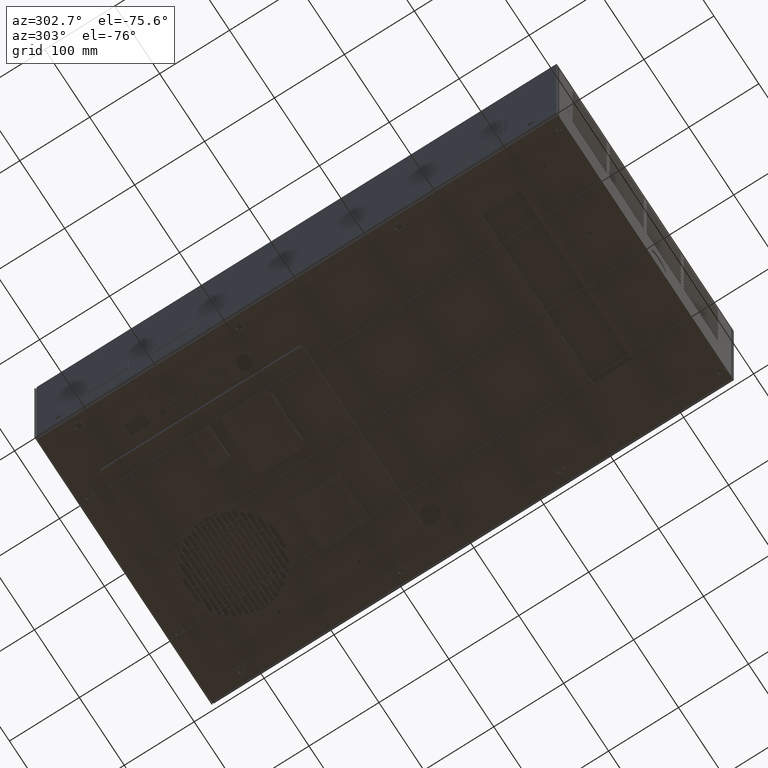
[diagram: clean part render]
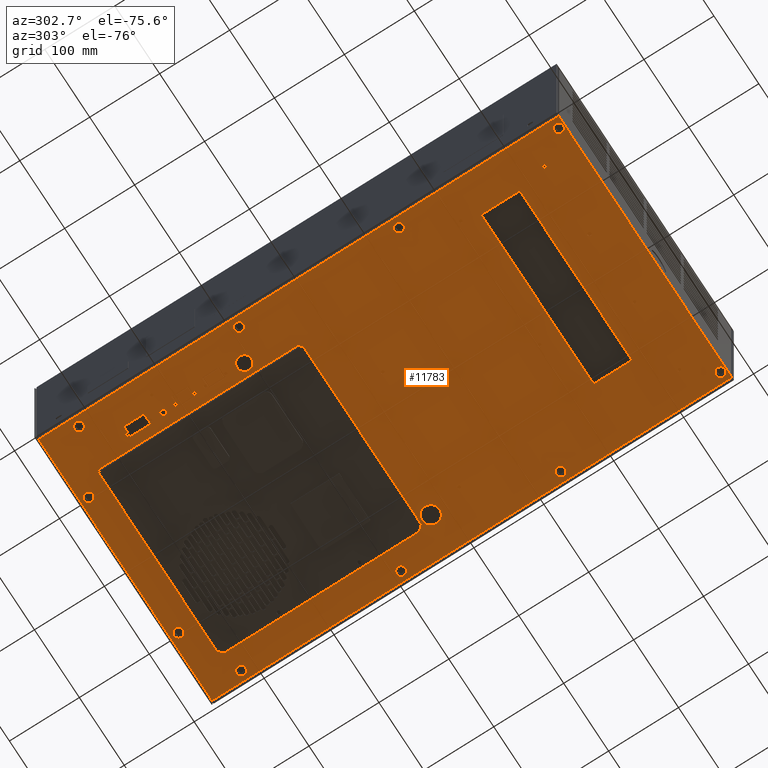
[diagram: same view with one face highlighted and labeled with its STEP entity id]
A machine part, auxiliary view. The second image highlights one B-rep face of the part: STEP entity #11783.
In plain terms, the highlighted planar face has unit normal (0, -0, -1).
Its self-contained STEP definition (entity closure, byte-faithful):
#6 = FACE_BOUND ( 'NONE', #13374, .T. ) ;
#121 = ORIENTED_EDGE ( 'NONE', *, *, #57220, .F. ) ;
#147 = DIRECTION ( 'NONE',  ( 0.000000000000000000, 1.000000000000000000, -4.440892098500622375E-14 ) ) ;
#176 = EDGE_CURVE ( 'NONE', #13663, #18947, #51613, .T. ) ;
#280 = CARTESIAN_POINT ( 'NONE',  ( -5.503197220197952433, 7.103729394688800269, -4.702526771653881887 ) ) ;
#487 = CIRCLE ( 'NONE', #27433, 0.08267716535433075609 ) ;
#579 = EDGE_CURVE ( 'NONE', #58352, #36260, #22975, .T. ) ;
#638 = EDGE_CURVE ( 'NONE', #58352, #48642, #25633, .T. ) ;
#738 = DIRECTION ( 'NONE',  ( 0.000000000000000000, -1.000000000000000000, 5.286776307738724068E-14 ) ) ;
#753 = VECTOR ( 'NONE', #28415, 39.37007874015748143 ) ;
#860 = VECTOR ( 'NONE', #54688, 39.37007874015748143 ) ;
#914 = VECTOR ( 'NONE', #35106, 39.37007874015748143 ) ;
#989 = VERTEX_POINT ( 'NONE', #44865 ) ;
#1062 = CARTESIAN_POINT ( 'NONE',  ( -5.944142102087717205, 6.420658528547067867, -4.702526771653857907 ) ) ;
#1112 = ORIENTED_EDGE ( 'NONE', *, *, #23141, .F. ) ;
#1301 = CIRCLE ( 'NONE', #17442, 0.2559055118110236671 ) ;
#1395 = VERTEX_POINT ( 'NONE', #26150 ) ;
#1524 = EDGE_LOOP ( 'NONE', ( #31976, #57483 ) ) ;
#1570 = AXIS2_PLACEMENT_3D ( 'NONE', #46740, #57192, #738 ) ;
#1655 = DIRECTION ( 'NONE',  ( 0.000000000000000000, -4.908917434398301166E-14, -1.000000000000000000 ) ) ;
#1691 = VERTEX_POINT ( 'NONE', #46381 ) ;
#1790 = VECTOR ( 'NONE', #13079, 39.37007874015748143 ) ;
#2006 = AXIS2_PLACEMENT_3D ( 'NONE', #35461, #30062, #30399 ) ;
#2154 = EDGE_LOOP ( 'NONE', ( #17092, #4512 ) ) ;
#2175 = CARTESIAN_POINT ( 'NONE',  ( -7.091903519410590384, 12.62770551531887975, -4.702526771654134130 ) ) ;
#2223 = CARTESIAN_POINT ( 'NONE',  ( -5.944142102087717205, 5.574201835633684432, -4.702526771653818827 ) ) ;
#2322 = FACE_BOUND ( 'NONE', #46979, .T. ) ;
#2336 = ORIENTED_EDGE ( 'NONE', *, *, #61776, .F. ) ;
#2423 = LINE ( 'NONE', #23017, #753 ) ;
#2504 = CARTESIAN_POINT ( 'NONE',  ( -1.542252338308188975, -0.9191784793269409670, -4.702526771653488424 ) ) ;
#2551 = CARTESIAN_POINT ( 'NONE',  ( 3.942151598699803028, 14.10963490649978169, -4.702526771654220283 ) ) ;
#2585 = DIRECTION ( 'NONE',  ( -1.000000000000000000, 6.299999999999999661E-14, 8.763716399840789270E-28 ) ) ;
#2604 = VECTOR ( 'NONE', #32918, 39.37007874015748143 ) ;
#2614 = DIRECTION ( 'NONE',  ( 0.8660254037844402619, 0.4999999999999971689, -2.562053133750366344E-14 ) ) ;
#2755 = DIRECTION ( 'NONE',  ( 9.317236615121649186E-16, 4.962726995465610309E-14, 1.000000000000000000 ) ) ;
#2816 = ORIENTED_EDGE ( 'NONE', *, *, #32472, .T. ) ;
#2888 = VERTEX_POINT ( 'NONE', #12922 ) ;
#3021 = ORIENTED_EDGE ( 'NONE', *, *, #176, .F. ) ;
#3228 = DIRECTION ( 'NONE',  ( 9.317236615121649186E-16, 4.962726995465610309E-14, 1.000000000000000000 ) ) ;
#3475 = VERTEX_POINT ( 'NONE', #39996 ) ;
#3560 = ORIENTED_EDGE ( 'NONE', *, *, #34183, .T. ) ;
#3646 = AXIS2_PLACEMENT_3D ( 'NONE', #8993, #49922, #54308 ) ;
#3761 = CARTESIAN_POINT ( 'NONE',  ( 11.56656180323832750, 7.439522308073976298, -4.702526771653897875 ) ) ;
#3807 = AXIS2_PLACEMENT_3D ( 'NONE', #22934, #44243, #43585 ) ;
#3834 = CARTESIAN_POINT ( 'NONE',  ( -5.503197220197952433, 8.316327819885650285, -4.702526771653944948 ) ) ;
#3958 = DIRECTION ( 'NONE',  ( 0.000000000000000000, -5.286776307738859752E-14, -1.000000000000000000 ) ) ;
#3960 = ORIENTED_EDGE ( 'NONE', *, *, #22360, .F. ) ;
#4095 = DIRECTION ( 'NONE',  ( 0.7071067811865919817, 0.7071067811865030528, -3.471140452471624982E-14 ) ) ;
#4338 = LINE ( 'NONE', #34064, #860 ) ;
#4512 = ORIENTED_EDGE ( 'NONE', *, *, #65341, .F. ) ;
#4582 = ORIENTED_EDGE ( 'NONE', *, *, #38419, .F. ) ;
#4590 = EDGE_LOOP ( 'NONE', ( #36127, #21846 ) ) ;
#4593 = ORIENTED_EDGE ( 'NONE', *, *, #63173, .F. ) ;
#4609 = CARTESIAN_POINT ( 'NONE',  ( -4.994856275316062799, 14.22924671752344494, -4.702526771654236271 ) ) ;
#4750 = CARTESIAN_POINT ( 'NONE',  ( 7.603568921534331615, -14.69870603838206691, -4.702526771652810744 ) ) ;
#4756 = CARTESIAN_POINT ( 'NONE',  ( -5.503197220197952433, 6.446249079728169740, -4.702526771653850801 ) ) ;
#4844 = CARTESIAN_POINT ( 'NONE',  ( 7.091757897912323472, -5.378318020954071521, -4.702526771653236182 ) ) ;
#4995 = DIRECTION ( 'NONE',  ( 0.000000000000000000, 1.000000000000000000, -4.440892098500622375E-14 ) ) ;
#5025 = DIRECTION ( 'NONE',  ( 9.317236615121649186E-16, 4.962726995465610309E-14, 1.000000000000000000 ) ) ;
#5126 = EDGE_CURVE ( 'NONE', #46960, #24041, #2423, .T. ) ;
#5129 = DIRECTION ( 'NONE',  ( 0.000000000000000000, -1.391066095212824115E-14, 1.000000000000000000 ) ) ;
#5161 = EDGE_CURVE ( 'NONE', #1691, #55666, #46129, .T. ) ;
#5297 = LINE ( 'NONE', #45869, #66717 ) ;
#5339 = CIRCLE ( 'NONE', #31240, 0.2559055118110236671 ) ;
#5703 = AXIS2_PLACEMENT_3D ( 'NONE', #22012, #35908, #56521 ) ;
#5724 = FACE_BOUND ( 'NONE', #43988, .T. ) ;
#6022 = VERTEX_POINT ( 'NONE', #14113 ) ;
#6107 = EDGE_LOOP ( 'NONE', ( #9881, #35084 ) ) ;
#6236 = VERTEX_POINT ( 'NONE', #51957 ) ;
#6282 = AXIS2_PLACEMENT_3D ( 'NONE', #34480, #14193, #60150 ) ;
#6494 = CARTESIAN_POINT ( 'NONE',  ( -5.904772023347558907, 8.093886875003759585, -4.702526771653936954 ) ) ;
#6506 = CARTESIAN_POINT ( 'NONE',  ( 7.642939000274489025, -14.69870603838206691, -4.702526771652810744 ) ) ;
#6507 = DIRECTION ( 'NONE',  ( -1.000000000000000000, 0.000000000000000000, 0.000000000000000000 ) ) ;
#6611 = CIRCLE ( 'NONE', #43354, 0.08267716535433035363 ) ;
#6828 = CARTESIAN_POINT ( 'NONE',  ( -6.505239852941397061, 8.904910497051023555, -4.702526771653976922 ) ) ;
#6830 = EDGE_CURVE ( 'NONE', #17431, #61100, #58566, .T. ) ;
#6836 = DIRECTION ( 'NONE',  ( 0.000000000000000000, -4.857225732735060495E-14, -1.000000000000000000 ) ) ;
#6837 = EDGE_CURVE ( 'NONE', #11127, #50526, #39142, .T. ) ;
#6967 = CIRCLE ( 'NONE', #14491, 0.08267716535433035363 ) ;
#7025 = ORIENTED_EDGE ( 'NONE', *, *, #24848, .F. ) ;
#7028 = CARTESIAN_POINT ( 'NONE',  ( 7.642939000274489025, 14.57373490649982273, -4.702526771654252258 ) ) ;
#7093 = EDGE_CURVE ( 'NONE', #3475, #46264, #12199, .T. ) ;
#7234 = VECTOR ( 'NONE', #12644, 39.37007874015748143 ) ;
#7274 = DIRECTION ( 'NONE',  ( 0.000000000000000000, 1.000000000000000000, -4.908917434398301166E-14 ) ) ;
#7294 = EDGE_LOOP ( 'NONE', ( #17196, #56689, #35416, #64129 ) ) ;
#7297 = CARTESIAN_POINT ( 'NONE',  ( 2.009547661691811093, -12.89161942420883911, -4.702526771652905779 ) ) ;
#7338 = DIRECTION ( 'NONE',  ( 0.000000000000000000, -1.000000000000000000, 4.857225732735055447E-14 ) ) ;
#7363 = FACE_BOUND ( 'NONE', #58832, .T. ) ;
#7381 = CARTESIAN_POINT ( 'NONE',  ( 5.150661047518582336, -0.8365013139726102942, -4.702526771653496418 ) ) ;
#7517 = VECTOR ( 'NONE', #14407, 39.37007874015748143 ) ;
#7550 = ORIENTED_EDGE ( 'NONE', *, *, #66604, .F. ) ;
#7564 = EDGE_CURVE ( 'NONE', #18947, #13663, #45714, .T. ) ;
#7717 = DIRECTION ( 'NONE',  ( 0.000000000000000000, 1.000000000000000000, -4.857225732735055447E-14 ) ) ;
#7795 = ORIENTED_EDGE ( 'NONE', *, *, #6837, .F. ) ;
#7876 = DIRECTION ( 'NONE',  ( 0.000000000000000000, -5.286776307738839557E-14, -1.000000000000000000 ) ) ;
#7955 = VERTEX_POINT ( 'NONE', #41248 ) ;
#8076 = DIRECTION ( 'NONE',  ( -6.299999999999999661E-14, -1.000000000000000000, 4.908933904787180437E-14 ) ) ;
#8080 = AXIS2_PLACEMENT_3D ( 'NONE', #56717, #10736, #61445 ) ;
#8259 = CARTESIAN_POINT ( 'NONE',  ( 3.942151598699803028, 14.10963490649978169, -4.702526771654220283 ) ) ;
#8304 = CARTESIAN_POINT ( 'NONE',  ( 7.603568921534331615, 14.57373490649982273, -4.702526771654252258 ) ) ;
#8506 = LINE ( 'NONE', #23724, #32240 ) ;
#8650 = DIRECTION ( 'NONE',  ( -6.299999999999999661E-14, -1.000000000000000000, 4.908917434398301166E-14 ) ) ;
#8684 = CIRCLE ( 'NONE', #33490, 0.07874015748031502893 ) ;
#8783 = CARTESIAN_POINT ( 'NONE',  ( -7.313524193607402246, 12.49975275941336506, -4.702526771654150117 ) ) ;
#8870 = VECTOR ( 'NONE', #47084, 39.37007874015748143 ) ;
#8969 = CIRCLE ( 'NONE', #19784, 0.08267716535433035363 ) ;
#8994 = EDGE_LOOP ( 'NONE', ( #35842, #33591 ) ) ;
#8993 = CARTESIAN_POINT ( 'NONE',  ( 7.102190968778741009, 12.61565844277273563, -4.702526771654134130 ) ) ;
#9177 = VECTOR ( 'NONE', #58770, 39.37007874015748143 ) ;
#9187 = VERTEX_POINT ( 'NONE', #42252 ) ;
#9191 = CIRCLE ( 'NONE', #8080, 0.2559055118110236671 ) ;
#9252 = CARTESIAN_POINT ( 'NONE',  ( -5.503197220197952433, 6.524989237208484560, -4.702526771653857907 ) ) ;
#9306 = VERTEX_POINT ( 'NONE', #26016 ) ;
#9308 = DIRECTION ( 'NONE',  ( 0.000000000000000000, 1.000000000000000000, -5.286776307738837663E-14 ) ) ;
#9355 = CIRCLE ( 'NONE', #62239, 0.07874015748031502893 ) ;
#9370 = EDGE_CURVE ( 'NONE', #35190, #50858, #9191, .T. ) ;
#9483 = CIRCLE ( 'NONE', #47306, 0.07874015748031502893 ) ;
#9486 = AXIS2_PLACEMENT_3D ( 'NONE', #34974, #50202, #29241 ) ;
#9580 = CIRCLE ( 'NONE', #66766, 0.08267716535433035363 ) ;
#9655 = VECTOR ( 'NONE', #4095, 39.37007874015748143 ) ;
#9734 = DIRECTION ( 'NONE',  ( 0.000000000000000000, -4.440892098500619851E-14, -1.000000000000000000 ) ) ;
#9740 = ORIENTED_EDGE ( 'NONE', *, *, #38888, .T. ) ;
#9806 = EDGE_LOOP ( 'NONE', ( #3021, #26032 ) ) ;
#9825 = CIRCLE ( 'NONE', #16306, 0.08267716535433253244 ) ;
#9881 = ORIENTED_EDGE ( 'NONE', *, *, #35486, .T. ) ;
#9910 = DIRECTION ( 'NONE',  ( 0.000000000000000000, -4.908933904787180437E-14, -1.000000000000000000 ) ) ;
#9957 = ORIENTED_EDGE ( 'NONE', *, *, #52527, .F. ) ;
#9988 = ORIENTED_EDGE ( 'NONE', *, *, #38782, .F. ) ;
#10002 = DIRECTION ( 'NONE',  ( 0.000000000000000000, -5.286776307738859752E-14, -1.000000000000000000 ) ) ;
#10029 = VERTEX_POINT ( 'NONE', #4756 ) ;
#10036 = ORIENTED_EDGE ( 'NONE', *, *, #30424, .F. ) ;
#10105 = EDGE_LOOP ( 'NONE', ( #13872, #1112 ) ) ;
#10108 = FACE_BOUND ( 'NONE', #39204, .T. ) ;
#10131 = DIRECTION ( 'NONE',  ( 0.000000000000000000, -4.857225732735060495E-14, -1.000000000000000000 ) ) ;
#10153 = ORIENTED_EDGE ( 'NONE', *, *, #56130, .T. ) ;
#10303 = CARTESIAN_POINT ( 'NONE',  ( 5.005143724683937201, 14.31192388287777462, -4.702526771654236271 ) ) ;
#10416 = ORIENTED_EDGE ( 'NONE', *, *, #29124, .T. ) ;
#10475 = VECTOR ( 'NONE', #21022, 39.37007874015748143 ) ;
#10512 = CARTESIAN_POINT ( 'NONE',  ( -5.503197220197952433, 10.94428057579116143, -4.702526771654071069 ) ) ;
#10588 = AXIS2_PLACEMENT_3D ( 'NONE', #33934, #43459, #22814 ) ;
#10736 = DIRECTION ( 'NONE',  ( -9.317236615112399792E-16, 4.962726995465560453E-14, 1.000000000000000000 ) ) ;
#10778 = VERTEX_POINT ( 'NONE', #38120 ) ;
#10815 = EDGE_CURVE ( 'NONE', #63049, #18415, #43852, .T. ) ;
#10819 = VERTEX_POINT ( 'NONE', #11743 ) ;
#10968 = CARTESIAN_POINT ( 'NONE',  ( -5.944142102087717205, 5.495461678153369611, -4.702526771653803728 ) ) ;
#11085 = VERTEX_POINT ( 'NONE', #50930 ) ;
#11127 = VERTEX_POINT ( 'NONE', #36712 ) ;
#11175 = VERTEX_POINT ( 'NONE', #58322 ) ;
#11480 = EDGE_LOOP ( 'NONE', ( #39211, #15346 ) ) ;
#11518 = CARTESIAN_POINT ( 'NONE',  ( -5.503197220197952433, 6.603729394688799381, -4.702526771653857907 ) ) ;
#11542 = CARTESIAN_POINT ( 'NONE',  ( -3.931864149331495639, 14.10963490649993979, -4.702526771654220283 ) ) ;
#11554 = DIRECTION ( 'NONE',  ( -1.000000000000000000, 0.000000000000000000, 0.000000000000000000 ) ) ;
#11743 = CARTESIAN_POINT ( 'NONE',  ( -5.944142102087717205, 9.708060103350216963, -4.702526771654016002 ) ) ;
#11783 = ADVANCED_FACE ( 'NONE', ( #10108, #21595, #30737, #41571, #51354, #5724, #62149, #16191, #57424, #46317, #31735, #6, #41249, #26657, #62819, #61831, #56758, #32745, #53668, #2322, #7363, #27337, #22917, #17829, #47637, #27994, #58742, #48635, #53348, #58421, #48954, #43567, #54015, #43244, #16515, #17516, #64139, #38462 ), #59063, .T. ) ;
#11806 = CIRCLE ( 'NONE', #19384, 0.2559055118110231120 ) ;
#11907 = LINE ( 'NONE', #53144, #27947 ) ;
#11914 = CARTESIAN_POINT ( 'NONE',  ( -5.503197220197952433, 8.237587662405335465, -4.702526771653936954 ) ) ;
#12166 = VERTEX_POINT ( 'NONE', #57676 ) ;
#12199 = CIRCLE ( 'NONE', #5703, 0.2559055118110238336 ) ;
#12242 = DIRECTION ( 'NONE',  ( -1.000000000000000000, 0.000000000000000000, 0.000000000000000000 ) ) ;
#12253 = DIRECTION ( 'NONE',  ( -1.000000000000000000, 0.000000000000000000, 0.000000000000000000 ) ) ;
#12310 = VECTOR ( 'NONE', #39576, 39.37007874015748143 ) ;
#12473 = CARTESIAN_POINT ( 'NONE',  ( -5.904772023347558907, 5.574201835633684432, -4.702526771653818827 ) ) ;
#12487 = LINE ( 'NONE', #28377, #32372 ) ;
#12637 = VECTOR ( 'NONE', #8650, 39.37007874015748143 ) ;
#12644 = DIRECTION ( 'NONE',  ( -2.523234146875355012E-16, -1.000000000000000000, 4.907150300597300884E-14 ) ) ;
#12652 = DIRECTION ( 'NONE',  ( 9.317236615112488539E-16, 4.962726995465560453E-14, 1.000000000000000000 ) ) ;
#12726 = AXIS2_PLACEMENT_3D ( 'NONE', #2551, #23135, #54245 ) ;
#12761 = VERTEX_POINT ( 'NONE', #34897 ) ;
#12822 = DIRECTION ( 'NONE',  ( 0.000000000000000000, -1.000000000000000000, 5.286776307738724068E-14 ) ) ;
#12868 = EDGE_CURVE ( 'NONE', #17128, #11175, #19873, .T. ) ;
#12922 = CARTESIAN_POINT ( 'NONE',  ( -5.944142102087717205, 8.133256953743916995, -4.702526771653936954 ) ) ;
#12986 = CARTESIAN_POINT ( 'NONE',  ( 4.335852386101260336, -9.009729660429311338, -4.702526771653094961 ) ) ;
#13027 = ORIENTED_EDGE ( 'NONE', *, *, #6830, .T. ) ;
#13029 = AXIS2_PLACEMENT_3D ( 'NONE', #40772, #51563, #9308 ) ;
#13079 = DIRECTION ( 'NONE',  ( 0.000000000000000000, 1.000000000000000000, -4.908917434398301166E-14 ) ) ;
#13081 = CIRCLE ( 'NONE', #28188, 0.08267716535433075609 ) ;
#13127 = CARTESIAN_POINT ( 'NONE',  ( -5.353590920985354273, 8.133256953743916995, -4.702526771653936954 ) ) ;
#13177 = ORIENTED_EDGE ( 'NONE', *, *, #37336, .F. ) ;
#13201 = DIRECTION ( 'NONE',  ( 0.000000000000000000, 1.000000000000000000, -4.857225732735055447E-14 ) ) ;
#13328 = ORIENTED_EDGE ( 'NONE', *, *, #31460, .T. ) ;
#13335 = VECTOR ( 'NONE', #35499, 39.37007874015748143 ) ;
#13374 = EDGE_LOOP ( 'NONE', ( #4582, #7550, #32871, #26685 ) ) ;
#13483 = CARTESIAN_POINT ( 'NONE',  ( -5.944142102087717205, 7.208060103350216963, -4.702526771653897875 ) ) ;
#13663 = VERTEX_POINT ( 'NONE', #55811 ) ;
#13687 = VERTEX_POINT ( 'NONE', #57163 ) ;
#13836 = CARTESIAN_POINT ( 'NONE',  ( -5.904772023347558907, 7.286800260830531784, -4.702526771653897875 ) ) ;
#13853 = EDGE_CURVE ( 'NONE', #26612, #12166, #48363, .T. ) ;
#13861 = EDGE_LOOP ( 'NONE', ( #2816, #40338 ) ) ;
#13872 = ORIENTED_EDGE ( 'NONE', *, *, #26357, .F. ) ;
#13970 = VECTOR ( 'NONE', #55711, 39.37007874015748143 ) ;
#14013 = ORIENTED_EDGE ( 'NONE', *, *, #21090, .F. ) ;
#14026 = ORIENTED_EDGE ( 'NONE', *, *, #56607, .F. ) ;
#14113 = CARTESIAN_POINT ( 'NONE',  ( 4.335852386101260336, -11.17508399113797246, -4.702526771652992821 ) ) ;
#14182 = CARTESIAN_POINT ( 'NONE',  ( -3.710243475134685109, 14.23758766240545270, -4.702526771654228277 ) ) ;
#14193 = DIRECTION ( 'NONE',  ( 9.317236615112488539E-16, 4.962726995465560453E-14, 1.000000000000000000 ) ) ;
#14407 = DIRECTION ( 'NONE',  ( 0.000000000000000000, -1.000000000000000000, 4.908917434398301166E-14 ) ) ;
#14461 = CARTESIAN_POINT ( 'NONE',  ( -1.940205094213701020, -12.80894225885450766, -4.702526771652913773 ) ) ;
#14491 = AXIS2_PLACEMENT_3D ( 'NONE', #19620, #34496, #28741 ) ;
#14533 = EDGE_CURVE ( 'NONE', #50858, #35190, #1301, .T. ) ;
#14659 = VERTEX_POINT ( 'NONE', #45229 ) ;
#14672 = CARTESIAN_POINT ( 'NONE',  ( -4.994856275316062799, 14.31192388287777462, -4.702526771654236271 ) ) ;
#14796 = CARTESIAN_POINT ( 'NONE',  ( -5.503197220197952433, 5.469871126972267739, -4.702526771653803728 ) ) ;
#14828 = VERTEX_POINT ( 'NONE', #43798 ) ;
#14896 = CIRCLE ( 'NONE', #9486, 0.08267716535433253244 ) ;
#15346 = ORIENTED_EDGE ( 'NONE', *, *, #64204, .F. ) ;
#15447 = VERTEX_POINT ( 'NONE', #25975 ) ;
#15581 = CARTESIAN_POINT ( 'NONE',  ( -5.353590920985354273, 10.84979238681478364, -4.702526771654071069 ) ) ;
#15586 = DIRECTION ( 'NONE',  ( 0.000000000000000000, -1.000000000000000000, 4.857225732735055447E-14 ) ) ;
#15631 = CARTESIAN_POINT ( 'NONE',  ( 7.091757897912283504, -14.39036509350001936, -4.702526771653834814 ) ) ;
#15778 = VERTEX_POINT ( 'NONE', #58711 ) ;
#15820 = DIRECTION ( 'NONE',  ( 0.8660254037844503650, 0.4999999999999798495, -2.562053133750364767E-14 ) ) ;
#15822 = CIRCLE ( 'NONE', #61171, 0.2559055118110237781 ) ;
#15981 = LINE ( 'NONE', #6506, #44602 ) ;
#16017 = AXIS2_PLACEMENT_3D ( 'NONE', #63452, #21897, #32715 ) ;
#16019 = CARTESIAN_POINT ( 'NONE',  ( -5.944142102087717205, 7.208060103350216963, -4.702526771653897875 ) ) ;
#16025 = CIRCLE ( 'NONE', #2006, 0.2559055118110238336 ) ;
#16045 = LINE ( 'NONE', #10968, #63214 ) ;
#16155 = ORIENTED_EDGE ( 'NONE', *, *, #32312, .F. ) ;
#16191 = FACE_BOUND ( 'NONE', #55495, .T. ) ;
#16266 = EDGE_CURVE ( 'NONE', #63346, #58930, #18341, .T. ) ;
#16306 = AXIS2_PLACEMENT_3D ( 'NONE', #30397, #61824, #35807 ) ;
#16445 = CARTESIAN_POINT ( 'NONE',  ( -5.503197220197952433, 5.391130969491952918, -4.702526771653794846 ) ) ;
#16515 = FACE_BOUND ( 'NONE', #4590, .T. ) ;
#16565 = DIRECTION ( 'NONE',  ( -1.000000000000000000, 0.000000000000000000, 0.000000000000000000 ) ) ;
#16582 = DIRECTION ( 'NONE',  ( 1.000000000000000000, 0.000000000000000000, 0.000000000000000000 ) ) ;
#16640 = CARTESIAN_POINT ( 'NONE',  ( 5.941561803238662343, 12.81452230807433068, -4.702526771654165216 ) ) ;
#16648 = CARTESIAN_POINT ( 'NONE',  ( -5.353590920985354273, 8.133256953743916995, -4.702526771653936954 ) ) ;
#16665 = CARTESIAN_POINT ( 'NONE',  ( -4.153484823528307501, 13.98168215059442865, -4.702526771654220283 ) ) ;
#16741 = DIRECTION ( 'NONE',  ( 0.000000000000000000, -5.286776307738859752E-14, -1.000000000000000000 ) ) ;
#16876 = LINE ( 'NONE', #12473, #23671 ) ;
#16968 = DIRECTION ( 'NONE',  ( 0.8660254037844383745, -0.5000000000000003331, 2.562053133750360980E-14 ) ) ;
#16984 = EDGE_CURVE ( 'NONE', #10029, #47809, #21683, .T. ) ;
#17054 = CARTESIAN_POINT ( 'NONE',  ( -4.821160999725512042, 13.02176640256281281, -4.702526771654173210 ) ) ;
#17062 = ORIENTED_EDGE ( 'NONE', *, *, #579, .F. ) ;
#17092 = ORIENTED_EDGE ( 'NONE', *, *, #52074, .F. ) ;
#17128 = VERTEX_POINT ( 'NONE', #19145 ) ;
#17135 = VERTEX_POINT ( 'NONE', #60734 ) ;
#17196 = ORIENTED_EDGE ( 'NONE', *, *, #23353, .T. ) ;
#17239 = ORIENTED_EDGE ( 'NONE', *, *, #19304, .F. ) ;
#17246 = DIRECTION ( 'NONE',  ( 1.000000000000000000, 0.000000000000000000, 0.000000000000000000 ) ) ;
#17431 = VERTEX_POINT ( 'NONE', #40346 ) ;
#17442 = AXIS2_PLACEMENT_3D ( 'NONE', #20523, #29983, #45885 ) ;
#17492 = CARTESIAN_POINT ( 'NONE',  ( -5.506667298938110910, -9.009729660429311338, -4.702526771653094961 ) ) ;
#17516 = FACE_BOUND ( 'NONE', #58583, .T. ) ;
#17621 = DIRECTION ( 'NONE',  ( 0.000000000000000000, -5.286776307738859752E-14, -1.000000000000000000 ) ) ;
#17687 = DIRECTION ( 'NONE',  ( 0.000000000000000000, -4.900769734088619890E-14, -1.000000000000000000 ) ) ;
#17813 = CIRCLE ( 'NONE', #55611, 0.09842519685039378963 ) ;
#17829 = FACE_BOUND ( 'NONE', #35588, .T. ) ;
#17857 = CIRCLE ( 'NONE', #42753, 0.2559055118110238336 ) ;
#18032 = DIRECTION ( 'NONE',  ( 1.000000000000000000, 0.000000000000000000, 0.000000000000000000 ) ) ;
#18190 = CARTESIAN_POINT ( 'NONE',  ( -5.392960999725511684, 7.247430182090374373, -4.702526771653897875 ) ) ;
#18228 = AXIS2_PLACEMENT_3D ( 'NONE', #22716, #63940, #16968 ) ;
#18253 = AXIS2_PLACEMENT_3D ( 'NONE', #51244, #55639, #51574 ) ;
#18341 = CIRCLE ( 'NONE', #25904, 0.2559055118110236671 ) ;
#18415 = VERTEX_POINT ( 'NONE', #42779 ) ;
#18688 = ORIENTED_EDGE ( 'NONE', *, *, #41993, .F. ) ;
#18704 = AXIS2_PLACEMENT_3D ( 'NONE', #10512, #57172, #15586 ) ;
#18947 = VERTEX_POINT ( 'NONE', #18948 ) ;
#18948 = CARTESIAN_POINT ( 'NONE',  ( -5.503197220197952433, 10.86554041831084660, -4.702526771654071069 ) ) ;
#18961 = EDGE_LOOP ( 'NONE', ( #62265, #16155, #14013, #62397, #39115, #31496 ) ) ;
#19052 = LINE ( 'NONE', #40373, #24042 ) ;
#19093 = VERTEX_POINT ( 'NONE', #65003 ) ;
#19145 = CARTESIAN_POINT ( 'NONE',  ( 1.339322464841417482, -7.970359581689153927, -4.702526771653252169 ) ) ;
#19291 = LINE ( 'NONE', #40933, #13335 ) ;
#19304 = EDGE_CURVE ( 'NONE', #50526, #11127, #13081, .T. ) ;
#19384 = AXIS2_PLACEMENT_3D ( 'NONE', #28291, #58708, #2614 ) ;
#19469 = DIRECTION ( 'NONE',  ( 0.000000000000000000, -5.286776307738839557E-14, -1.000000000000000000 ) ) ;
#19484 = EDGE_CURVE ( 'NONE', #6236, #28275, #19555, .T. ) ;
#19511 = CARTESIAN_POINT ( 'NONE',  ( -4.994856275316062799, 14.22924671752344494, -4.702526771654236271 ) ) ;
#19555 = CIRCLE ( 'NONE', #36825, 0.2559055118110236671 ) ;
#19586 = ORIENTED_EDGE ( 'NONE', *, *, #5161, .F. ) ;
#19613 = DIRECTION ( 'NONE',  ( 1.000000000000000000, 0.000000000000000000, 0.000000000000000000 ) ) ;
#19616 = CARTESIAN_POINT ( 'NONE',  ( -5.503197220197952433, 9.613571914373839178, -4.702526771654008009 ) ) ;
#19620 = CARTESIAN_POINT ( 'NONE',  ( 5.005143724683937201, 14.22924671752344494, -4.702526771654236271 ) ) ;
#19671 = VERTEX_POINT ( 'NONE', #44082 ) ;
#19684 = CIRCLE ( 'NONE', #45628, 0.07874015748031502893 ) ;
#19693 = EDGE_CURVE ( 'NONE', #54071, #20458, #43359, .T. ) ;
#19784 = AXIS2_PLACEMENT_3D ( 'NONE', #59517, #17621, #32841 ) ;
#19873 = CIRCLE ( 'NONE', #1570, 0.08267716535433253244 ) ;
#19934 = CARTESIAN_POINT ( 'NONE',  ( -5.432331078465669094, 8.133256953743916995, -4.702526771653936954 ) ) ;
#19977 = CARTESIAN_POINT ( 'NONE',  ( -5.463827141457795911, 4.360349079728173649, -4.702526771653747772 ) ) ;
#19999 = CIRCLE ( 'NONE', #54546, 0.07874015748031502893 ) ;
#20126 = CARTESIAN_POINT ( 'NONE',  ( -4.683438196761236405, 14.57373490650059189, -4.702526771654252258 ) ) ;
#20424 = CARTESIAN_POINT ( 'NONE',  ( -5.944142102087717205, 6.420658528547067867, -4.702526771653857907 ) ) ;
#20458 = VERTEX_POINT ( 'NONE', #22950 ) ;
#20470 = DIRECTION ( 'NONE',  ( 0.000000000000000000, 1.000000000000000000, -5.286776307738837663E-14 ) ) ;
#20523 = CARTESIAN_POINT ( 'NONE',  ( -7.091903519410512224, 3.615658442772945236, -4.702526771653700699 ) ) ;
#20725 = LINE ( 'NONE', #21377, #8870 ) ;
#21022 = DIRECTION ( 'NONE',  ( 1.000000000000000000, 0.000000000000000000, 0.000000000000000000 ) ) ;
#21045 = DIRECTION ( 'NONE',  ( -1.000000000000000000, 0.000000000000000000, 0.000000000000000000 ) ) ;
#21090 = EDGE_CURVE ( 'NONE', #12166, #17135, #20725, .T. ) ;
#21190 = CARTESIAN_POINT ( 'NONE',  ( -5.763039739882993118, -8.092406825783641011, -4.702526771653244175 ) ) ;
#21377 = CARTESIAN_POINT ( 'NONE',  ( -5.432331078465669094, 6.420658528547067867, -4.702526771653857907 ) ) ;
#21448 = CARTESIAN_POINT ( 'NONE',  ( 5.946555535707560125, -12.80894225885450766, -4.702526771652913773 ) ) ;
#21595 = FACE_BOUND ( 'NONE', #34553, .T. ) ;
#21666 = LINE ( 'NONE', #43316, #24557 ) ;
#21683 = CIRCLE ( 'NONE', #51909, 0.07874015748031502893 ) ;
#21711 = CARTESIAN_POINT ( 'NONE',  ( -5.353590920985354273, 9.708060103350216963, -4.702526771654016002 ) ) ;
#21752 = VERTEX_POINT ( 'NONE', #53121 ) ;
#21772 = AXIS2_PLACEMENT_3D ( 'NONE', #54524, #44421, #27852 ) ;
#21846 = ORIENTED_EDGE ( 'NONE', *, *, #41162, .F. ) ;
#21897 = DIRECTION ( 'NONE',  ( 9.317236615112488539E-16, 4.962726995465560453E-14, 1.000000000000000000 ) ) ;
#22010 = LINE ( 'NONE', #42993, #60022 ) ;
#22012 = CARTESIAN_POINT ( 'NONE',  ( 7.091757897912283504, -14.39036509350001936, -4.702526771653834814 ) ) ;
#22111 = VERTEX_POINT ( 'NONE', #29423 ) ;
#22115 = CARTESIAN_POINT ( 'NONE',  ( -7.091903519410551304, -5.384341557227141806, -4.702526771653236182 ) ) ;
#22148 = VERTEX_POINT ( 'NONE', #42796 ) ;
#22317 = EDGE_LOOP ( 'NONE', ( #37016, #55505 ) ) ;
#22360 = EDGE_CURVE ( 'NONE', #1395, #35124, #19684, .T. ) ;
#22415 = AXIS2_PLACEMENT_3D ( 'NONE', #21448, #25867, #66752 ) ;
#22716 = CARTESIAN_POINT ( 'NONE',  ( -7.091903519410551304, -5.384341557227141806, -4.702526771653236182 ) ) ;
#22776 = CARTESIAN_POINT ( 'NONE',  ( -5.944142102087717205, 9.708060103350216963, -4.702526771654016002 ) ) ;
#22801 = CARTESIAN_POINT ( 'NONE',  ( -5.503197220197952433, 9.692312071854153999, -4.702526771654016002 ) ) ;
#22814 = DIRECTION ( 'NONE',  ( 0.000000000000000000, -1.000000000000000000, 4.857225732735055447E-14 ) ) ;
#22896 = CARTESIAN_POINT ( 'NONE',  ( -5.503197220197952433, 6.524989237208484560, -4.702526771653857907 ) ) ;
#22917 = FACE_BOUND ( 'NONE', #61349, .T. ) ;
#22934 = CARTESIAN_POINT ( 'NONE',  ( -5.503197220197952433, 8.904910497051023555, -4.702526771653976922 ) ) ;
#22950 = CARTESIAN_POINT ( 'NONE',  ( -5.503197220197952433, 8.745855378940767366, -4.702526771653968041 ) ) ;
#22975 = LINE ( 'NONE', #54392, #36555 ) ;
#23017 = CARTESIAN_POINT ( 'NONE',  ( -5.392960999725511684, 5.534831756893527022, -4.702526771653810833 ) ) ;
#23095 = CARTESIAN_POINT ( 'NONE',  ( 5.691561803238668560, 13.06452230807433068, -4.702526771654173210 ) ) ;
#23135 = DIRECTION ( 'NONE',  ( 9.317236615121649186E-16, 4.962726995465610309E-14, 1.000000000000000000 ) ) ;
#23141 = EDGE_CURVE ( 'NONE', #43612, #11085, #8969, .T. ) ;
#23144 = ORIENTED_EDGE ( 'NONE', *, *, #16984, .F. ) ;
#23262 = CARTESIAN_POINT ( 'NONE',  ( -5.392960999725511684, 5.534831756893527022, -4.702526771653810833 ) ) ;
#23353 = EDGE_CURVE ( 'NONE', #57357, #19093, #15981, .T. ) ;
#23416 = VERTEX_POINT ( 'NONE', #36945 ) ;
#23615 = EDGE_CURVE ( 'NONE', #28275, #6236, #37652, .T. ) ;
#23671 = VECTOR ( 'NONE', #58456, 39.37007874015748143 ) ;
#23724 = CARTESIAN_POINT ( 'NONE',  ( -5.353590920985354273, 5.495461678153369611, -4.702526771653803728 ) ) ;
#23736 = CARTESIAN_POINT ( 'NONE',  ( -5.392960999725511684, 7.247430182090374373, -4.702526771653897875 ) ) ;
#23749 = DIRECTION ( 'NONE',  ( 0.000000000000000000, 1.000000000000000000, -5.286776307738837663E-14 ) ) ;
#23825 = DIRECTION ( 'NONE',  ( 0.8660254037844503650, 0.4999999999999798495, -2.562053133750364767E-14 ) ) ;
#23879 = AXIS2_PLACEMENT_3D ( 'NONE', #19977, #56492, #56160 ) ;
#24008 = EDGE_CURVE ( 'NONE', #52110, #25118, #44280, .T. ) ;
#24041 = VERTEX_POINT ( 'NONE', #34782 ) ;
#24042 = VECTOR ( 'NONE', #61299, 39.37007874015748143 ) ;
#24280 = CARTESIAN_POINT ( 'NONE',  ( -5.944142102087717205, 5.495461678153369611, -4.702526771653803728 ) ) ;
#24316 = VECTOR ( 'NONE', #57950, 39.37007874015748143 ) ;
#24346 = EDGE_CURVE ( 'NONE', #42238, #7955, #44065, .T. ) ;
#24557 = VECTOR ( 'NONE', #16582, 39.37007874015748143 ) ;
#24606 = VECTOR ( 'NONE', #7274, 39.37007874015748143 ) ;
#24624 = AXIS2_PLACEMENT_3D ( 'NONE', #19616, #10131, #29747 ) ;
#24632 = EDGE_CURVE ( 'NONE', #40903, #25994, #5297, .T. ) ;
#24848 = EDGE_CURVE ( 'NONE', #26961, #12761, #58550, .T. ) ;
#25118 = VERTEX_POINT ( 'NONE', #59620 ) ;
#25344 = VERTEX_POINT ( 'NONE', #41301 ) ;
#25397 = DIRECTION ( 'NONE',  ( 0.000000000000000000, -4.908933904787180437E-14, -1.000000000000000000 ) ) ;
#25399 = CARTESIAN_POINT ( 'NONE',  ( -7.081470448544409990, -14.39036509350001936, -4.702526771653834814 ) ) ;
#25633 = LINE ( 'NONE', #40529, #914 ) ;
#25867 = DIRECTION ( 'NONE',  ( 0.000000000000000000, -5.286776307738859752E-14, -1.000000000000000000 ) ) ;
#25904 = AXIS2_PLACEMENT_3D ( 'NONE', #63716, #12652, #38356 ) ;
#25975 = CARTESIAN_POINT ( 'NONE',  ( -5.503197220197952433, 8.158847504925020644, -4.702526771653936954 ) ) ;
#25994 = VERTEX_POINT ( 'NONE', #26987 ) ;
#26016 = CARTESIAN_POINT ( 'NONE',  ( -5.506667298938110910, -11.17508399113797246, -4.702526771652992821 ) ) ;
#26032 = ORIENTED_EDGE ( 'NONE', *, *, #7564, .F. ) ;
#26138 = DIRECTION ( 'NONE',  ( 0.8660254037844383745, 0.5000000000000003331, -2.562053133750360980E-14 ) ) ;
#26150 = CARTESIAN_POINT ( 'NONE',  ( -5.503197220197952433, 5.312390812011637209, -4.702526771653794846 ) ) ;
#26158 = DIRECTION ( 'NONE',  ( 0.000000000000000000, -1.000000000000000000, 4.857225732735055447E-14 ) ) ;
#26246 = DIRECTION ( 'NONE',  ( 0.000000000000000000, -5.286776307738859752E-14, -1.000000000000000000 ) ) ;
#26277 = CARTESIAN_POINT ( 'NONE',  ( -6.870282845213701250, 3.487705686867433208, -4.702526771653700699 ) ) ;
#26357 = EDGE_CURVE ( 'NONE', #11085, #43612, #28075, .T. ) ;
#26612 = VERTEX_POINT ( 'NONE', #20424 ) ;
#26657 = FACE_BOUND ( 'NONE', #2154, .T. ) ;
#26683 = AXIS2_PLACEMENT_3D ( 'NONE', #4609, #10002, #66426 ) ;
#26685 = ORIENTED_EDGE ( 'NONE', *, *, #33019, .F. ) ;
#26961 = VERTEX_POINT ( 'NONE', #13836 ) ;
#26987 = CARTESIAN_POINT ( 'NONE',  ( -5.353590920985354273, 7.208060103350216963, -4.702526771653897875 ) ) ;
#27000 = VERTEX_POINT ( 'NONE', #14182 ) ;
#27063 = EDGE_CURVE ( 'NONE', #53759, #48475, #9825, .T. ) ;
#27138 = DIRECTION ( 'NONE',  ( 0.000000000000000000, -1.000000000000000000, 4.857225732735055447E-14 ) ) ;
#27194 = LINE ( 'NONE', #22776, #2604 ) ;
#27196 = ORIENTED_EDGE ( 'NONE', *, *, #44565, .F. ) ;
#27202 = CARTESIAN_POINT ( 'NONE',  ( -5.944142102087717205, 5.574201835633684432, -4.702526771653818827 ) ) ;
#27262 = DIRECTION ( 'NONE',  ( 0.000000000000000000, 1.000000000000000000, -4.857225732735055447E-14 ) ) ;
#27337 = FACE_BOUND ( 'NONE', #32170, .T. ) ;
#27433 = AXIS2_PLACEMENT_3D ( 'NONE', #2504, #7876, #43104 ) ;
#27450 = DIRECTION ( 'NONE',  ( 0.000000000000000000, -4.908933904787180437E-14, -1.000000000000000000 ) ) ;
#27587 = CARTESIAN_POINT ( 'NONE',  ( -4.683438196761338546, 13.02176640256281281, -4.702526771654173210 ) ) ;
#27631 = DIRECTION ( 'NONE',  ( 0.000000000000000000, -4.908933904787180437E-14, -1.000000000000000000 ) ) ;
#27838 = CIRCLE ( 'NONE', #6282, 0.2559055118110236671 ) ;
#27851 = ORIENTED_EDGE ( 'NONE', *, *, #7093, .T. ) ;
#27852 = DIRECTION ( 'NONE',  ( 0.000000000000000000, 1.000000000000000000, -4.809134388846673474E-14 ) ) ;
#27862 = LINE ( 'NONE', #17054, #50254 ) ;
#27947 = VECTOR ( 'NONE', #37937, 39.37007874015748143 ) ;
#27994 = FACE_BOUND ( 'NONE', #53803, .T. ) ;
#28075 = CIRCLE ( 'NONE', #64788, 0.08267716535433035363 ) ;
#28163 = VECTOR ( 'NONE', #58719, 39.37007874015748143 ) ;
#28188 = AXIS2_PLACEMENT_3D ( 'NONE', #51224, #19469, #20470 ) ;
#28260 = ORIENTED_EDGE ( 'NONE', *, *, #60712, .T. ) ;
#28275 = VERTEX_POINT ( 'NONE', #64713 ) ;
#28291 = CARTESIAN_POINT ( 'NONE',  ( -7.091903519410590384, 12.62770551531887975, -4.702526771654134130 ) ) ;
#28377 = CARTESIAN_POINT ( 'NONE',  ( 4.335852386101260336, -9.009729660429311338, -4.702526771653094961 ) ) ;
#28415 = DIRECTION ( 'NONE',  ( 0.000000000000000000, 1.000000000000000000, -4.908917434398301166E-14 ) ) ;
#28472 = VERTEX_POINT ( 'NONE', #16665 ) ;
#28506 = CARTESIAN_POINT ( 'NONE',  ( -7.337375960355433158, -14.39036509350001936, -4.702526771652834725 ) ) ;
#28537 = LINE ( 'NONE', #64708, #47826 ) ;
#28741 = DIRECTION ( 'NONE',  ( 0.000000000000000000, 1.000000000000000000, -5.286776307738863538E-14 ) ) ;
#28807 = DIRECTION ( 'NONE',  ( 9.317236615114308835E-16, 4.962726995465569920E-14, 1.000000000000000000 ) ) ;
#29124 = EDGE_CURVE ( 'NONE', #42501, #38550, #16025, .T. ) ;
#29126 = ORIENTED_EDGE ( 'NONE', *, *, #54835, .T. ) ;
#29134 = AXIS2_PLACEMENT_3D ( 'NONE', #66292, #25397, #35552 ) ;
#29241 = DIRECTION ( 'NONE',  ( 0.000000000000000000, 1.000000000000000000, -5.286776307738724068E-14 ) ) ;
#29290 = CIRCLE ( 'NONE', #23879, 0.4125000000000000333 ) ;
#29304 = ORIENTED_EDGE ( 'NONE', *, *, #43696, .T. ) ;
#29355 = VERTEX_POINT ( 'NONE', #30217 ) ;
#29362 = EDGE_CURVE ( 'NONE', #38361, #38361, #64684, .T. ) ;
#29374 = CARTESIAN_POINT ( 'NONE',  ( 7.323811642975551095, 12.74361119867824854, -4.702526771654134130 ) ) ;
#29423 = CARTESIAN_POINT ( 'NONE',  ( 5.946555535707560125, -12.72626509350017798, -4.702526771652913773 ) ) ;
#29601 = CARTESIAN_POINT ( 'NONE',  ( 7.347663409723307559, -14.39036509350001936, -4.702526771653834814 ) ) ;
#29719 = CARTESIAN_POINT ( 'NONE',  ( -5.353590920985354273, 10.84979238681478364, -4.702526771654071069 ) ) ;
#29747 = DIRECTION ( 'NONE',  ( 0.000000000000000000, 1.000000000000000000, -4.857225732735055447E-14 ) ) ;
#29975 = EDGE_CURVE ( 'NONE', #60426, #61392, #63872, .T. ) ;
#29983 = DIRECTION ( 'NONE',  ( -9.317236615112399792E-16, 4.962726995465560453E-14, 1.000000000000000000 ) ) ;
#30009 = EDGE_LOOP ( 'NONE', ( #56122, #56469 ) ) ;
#30029 = VERTEX_POINT ( 'NONE', #34102 ) ;
#30062 = DIRECTION ( 'NONE',  ( 0.000000000000000000, -1.391066095212824115E-14, 1.000000000000000000 ) ) ;
#30203 = EDGE_CURVE ( 'NONE', #27000, #28472, #41992, .T. ) ;
#30217 = CARTESIAN_POINT ( 'NONE',  ( 5.005143724683937201, 14.14656955216911349, -4.702526771654228277 ) ) ;
#30397 = CARTESIAN_POINT ( 'NONE',  ( -5.763039739882993118, -8.009729660429311338, -4.702526771653252169 ) ) ;
#30399 = DIRECTION ( 'NONE',  ( 1.000000000000000000, 0.000000000000000000, 0.000000000000000000 ) ) ;
#30424 = EDGE_CURVE ( 'NONE', #21752, #25344, #9580, .T. ) ;
#30602 = DIRECTION ( 'NONE',  ( -1.000000000000000000, 7.401486830834380618E-15, -3.633332940263764609E-28 ) ) ;
#30737 = FACE_BOUND ( 'NONE', #60925, .T. ) ;
#31097 = VERTEX_POINT ( 'NONE', #41285 ) ;
#31179 = EDGE_CURVE ( 'NONE', #25118, #46525, #16876, .T. ) ;
#31240 = AXIS2_PLACEMENT_3D ( 'NONE', #4844, #36615, #26138 ) ;
#31287 = EDGE_CURVE ( 'NONE', #64412, #48256, #65864, .T. ) ;
#31316 = CARTESIAN_POINT ( 'NONE',  ( 7.313378572109133557, -5.250365265048550611, -4.702526771653244175 ) ) ;
#31318 = CARTESIAN_POINT ( 'NONE',  ( 5.005143724683937201, 14.22924671752344494, -4.702526771654236271 ) ) ;
#31336 = AXIS2_PLACEMENT_3D ( 'NONE', #6828, #27450, #21045 ) ;
#31375 = ORIENTED_EDGE ( 'NONE', *, *, #29975, .F. ) ;
#31460 = EDGE_CURVE ( 'NONE', #61100, #17431, #11806, .T. ) ;
#31496 = ORIENTED_EDGE ( 'NONE', *, *, #31179, .F. ) ;
#31647 = DIRECTION ( 'NONE',  ( 0.000000000000000000, 1.000000000000000000, -5.286776307738863538E-14 ) ) ;
#31735 = FACE_BOUND ( 'NONE', #6107, .T. ) ;
#31855 = CARTESIAN_POINT ( 'NONE',  ( -5.432331078465669094, 8.133256953743916995, -4.702526771653936954 ) ) ;
#31899 = ORIENTED_EDGE ( 'NONE', *, *, #44490, .F. ) ;
#31976 = ORIENTED_EDGE ( 'NONE', *, *, #9370, .T. ) ;
#32053 = VECTOR ( 'NONE', #2585, 39.37007874015748143 ) ;
#32170 = EDGE_LOOP ( 'NONE', ( #42142, #61484, #27196, #37531, #31899, #31375 ) ) ;
#32240 = VECTOR ( 'NONE', #63958, 39.37007874015748143 ) ;
#32274 = DIRECTION ( 'NONE',  ( -9.317236615112399792E-16, 4.962726995465560453E-14, 1.000000000000000000 ) ) ;
#32312 = EDGE_CURVE ( 'NONE', #17135, #52110, #51400, .T. ) ;
#32372 = VECTOR ( 'NONE', #17246, 39.37007874015748143 ) ;
#32472 = EDGE_CURVE ( 'NONE', #11175, #17128, #49703, .T. ) ;
#32557 = CARTESIAN_POINT ( 'NONE',  ( -5.353590920985354273, 7.208060103350216963, -4.702526771653897875 ) ) ;
#32675 = CARTESIAN_POINT ( 'NONE',  ( -5.904772023347558907, 7.286800260830531784, -4.702526771653897875 ) ) ;
#32715 = DIRECTION ( 'NONE',  ( 0.8660254037844383745, 0.5000000000000003331, -2.562053133750360980E-14 ) ) ;
#32745 = FACE_BOUND ( 'NONE', #42441, .T. ) ;
#32841 = DIRECTION ( 'NONE',  ( 0.000000000000000000, 1.000000000000000000, -5.286776307738863538E-14 ) ) ;
#32842 = EDGE_CURVE ( 'NONE', #9306, #37676, #63795, .T. ) ;
#32845 = EDGE_CURVE ( 'NONE', #15447, #42575, #44394, .T. ) ;
#32871 = ORIENTED_EDGE ( 'NONE', *, *, #32842, .F. ) ;
#32918 = DIRECTION ( 'NONE',  ( 0.000000000000000000, 1.000000000000000000, -4.908917434398301166E-14 ) ) ;
#33019 = EDGE_CURVE ( 'NONE', #6022, #9306, #58633, .T. ) ;
#33032 = CARTESIAN_POINT ( 'NONE',  ( -5.503197220197952433, 8.237587662405335465, -4.702526771653936954 ) ) ;
#33256 = CARTESIAN_POINT ( 'NONE',  ( -5.904772023347558907, 6.381288449806910457, -4.702526771653850801 ) ) ;
#33385 = AXIS2_PLACEMENT_3D ( 'NONE', #55554, #35951, #147 ) ;
#33399 = DIRECTION ( 'NONE',  ( 0.000000000000000000, -1.000000000000000000, 4.908917434398301166E-14 ) ) ;
#33490 = AXIS2_PLACEMENT_3D ( 'NONE', #63928, #48741, #48414 ) ;
#33517 = AXIS2_PLACEMENT_3D ( 'NONE', #64529, #63869, #12822 ) ;
#33591 = ORIENTED_EDGE ( 'NONE', *, *, #19484, .T. ) ;
#33604 = CARTESIAN_POINT ( 'NONE',  ( -7.593281472166456325, -14.69870603838206691, -4.702526771652810744 ) ) ;
#33903 = EDGE_LOOP ( 'NONE', ( #47276 ) ) ;
#33934 = CARTESIAN_POINT ( 'NONE',  ( -5.503197220197952433, 10.94428057579116143, -4.702526771654071069 ) ) ;
#33994 = EDGE_CURVE ( 'NONE', #29355, #45163, #40196, .T. ) ;
#34064 = CARTESIAN_POINT ( 'NONE',  ( 4.428839000274488846, 1.683183725397468633, -4.702526771653621651 ) ) ;
#34102 = CARTESIAN_POINT ( 'NONE',  ( 5.946555535707560125, -12.89161942420883911, -4.702526771652905779 ) ) ;
#34183 = EDGE_CURVE ( 'NONE', #55145, #43638, #28537, .T. ) ;
#34384 = EDGE_CURVE ( 'NONE', #40995, #47460, #19052, .T. ) ;
#34431 = CIRCLE ( 'NONE', #18253, 0.08267716535433035363 ) ;
#34446 = DIRECTION ( 'NONE',  ( 0.000000000000000000, -1.000000000000000000, 4.908917434398301166E-14 ) ) ;
#34480 = CARTESIAN_POINT ( 'NONE',  ( 7.102190968778425706, 3.603611370226763810, -4.702526771653700699 ) ) ;
#34496 = DIRECTION ( 'NONE',  ( 0.000000000000000000, -5.286776307738859752E-14, -1.000000000000000000 ) ) ;
#34553 = EDGE_LOOP ( 'NONE', ( #48838, #49427 ) ) ;
#34677 = VECTOR ( 'NONE', #53554, 39.37007874015748143 ) ;
#34766 = ORIENTED_EDGE ( 'NONE', *, *, #41204, .F. ) ;
#34782 = CARTESIAN_POINT ( 'NONE',  ( -5.392960999725511684, 6.420658528547067867, -4.702526771653857907 ) ) ;
#34897 = CARTESIAN_POINT ( 'NONE',  ( -5.944142102087717205, 7.286800260830531784, -4.702526771653897875 ) ) ;
#34974 = CARTESIAN_POINT ( 'NONE',  ( -5.763039739882993118, -8.009729660429311338, -4.702526771653252169 ) ) ;
#35084 = ORIENTED_EDGE ( 'NONE', *, *, #53637, .T. ) ;
#35106 = DIRECTION ( 'NONE',  ( -0.7071067811865030528, 0.7071067811865919817, -3.471140452471505076E-14 ) ) ;
#35108 = VECTOR ( 'NONE', #19613, 39.37007874015748143 ) ;
#35124 = VERTEX_POINT ( 'NONE', #14796 ) ;
#35190 = VERTEX_POINT ( 'NONE', #48248 ) ;
#35201 = ORIENTED_EDGE ( 'NONE', *, *, #42316, .F. ) ;
#35322 = CIRCLE ( 'NONE', #26683, 0.08267716535433035363 ) ;
#35340 = LINE ( 'NONE', #20126, #12637 ) ;
#35360 = DIRECTION ( 'NONE',  ( -1.181088324069316039E-15, -1.000000000000000000, 4.908917434398301166E-14 ) ) ;
#35416 = ORIENTED_EDGE ( 'NONE', *, *, #34384, .F. ) ;
#35461 = CARTESIAN_POINT ( 'NONE',  ( -7.081470448544409990, -14.39036509350001936, -4.702526771653834814 ) ) ;
#35486 = EDGE_CURVE ( 'NONE', #38451, #59028, #36029, .T. ) ;
#35499 = DIRECTION ( 'NONE',  ( -1.000000000000000000, -7.401486830834380618E-15, 3.633332940263764609E-28 ) ) ;
#35552 = DIRECTION ( 'NONE',  ( -1.000000000000000000, 0.000000000000000000, 0.000000000000000000 ) ) ;
#35559 = CIRCLE ( 'NONE', #66870, 0.2559055118110232785 ) ;
#35588 = EDGE_LOOP ( 'NONE', ( #53299, #19586 ) ) ;
#35599 = VERTEX_POINT ( 'NONE', #45853 ) ;
#35807 = DIRECTION ( 'NONE',  ( 0.000000000000000000, 1.000000000000000000, -5.286776307738724068E-14 ) ) ;
#35831 = ORIENTED_EDGE ( 'NONE', *, *, #40276, .F. ) ;
#35842 = ORIENTED_EDGE ( 'NONE', *, *, #23615, .T. ) ;
#35908 = DIRECTION ( 'NONE',  ( 0.000000000000000000, -1.391066095212824115E-14, 1.000000000000000000 ) ) ;
#35913 = EDGE_CURVE ( 'NONE', #10778, #52873, #44671, .T. ) ;
#35951 = DIRECTION ( 'NONE',  ( 0.000000000000000000, -4.440892098500619851E-14, -1.000000000000000000 ) ) ;
#36029 = CIRCLE ( 'NONE', #3646, 0.2559055118110237781 ) ;
#36098 = CARTESIAN_POINT ( 'NONE',  ( 7.323811642975236680, 3.731564126132275838, -4.702526771653708693 ) ) ;
#36127 = ORIENTED_EDGE ( 'NONE', *, *, #57759, .F. ) ;
#36259 = DIRECTION ( 'NONE',  ( 1.000000000000000000, 0.000000000000000000, 0.000000000000000000 ) ) ;
#36260 = VERTEX_POINT ( 'NONE', #49677 ) ;
#36335 = EDGE_LOOP ( 'NONE', ( #27851, #63165 ) ) ;
#36555 = VECTOR ( 'NONE', #8076, 39.37007874015748143 ) ;
#36587 = LINE ( 'NONE', #13127, #48287 ) ;
#36615 = DIRECTION ( 'NONE',  ( 9.317236615112488539E-16, 4.962726995465560453E-14, 1.000000000000000000 ) ) ;
#36712 = CARTESIAN_POINT ( 'NONE',  ( 5.150661047518582336, -1.001855644681271862, -4.702526771653488424 ) ) ;
#36725 = CARTESIAN_POINT ( 'NONE',  ( 2.009547661691811093, -12.80894225885450766, -4.702526771652913773 ) ) ;
#36809 = AXIS2_PLACEMENT_3D ( 'NONE', #33032, #53641, #7338 ) ;
#36825 = AXIS2_PLACEMENT_3D ( 'NONE', #22115, #32274, #46844 ) ;
#36918 = ORIENTED_EDGE ( 'NONE', *, *, #27063, .T. ) ;
#36945 = CARTESIAN_POINT ( 'NONE',  ( 4.163772272896613558, 14.23758766240529461, -4.702526771654228277 ) ) ;
#37016 = ORIENTED_EDGE ( 'NONE', *, *, #41693, .F. ) ;
#37041 = LINE ( 'NONE', #2223, #66809 ) ;
#37229 = EDGE_CURVE ( 'NONE', #24041, #56128, #59280, .T. ) ;
#37232 = DIRECTION ( 'NONE',  ( 0.000000000000000000, -1.000000000000000000, 4.908933904787180437E-14 ) ) ;
#37246 = EDGE_CURVE ( 'NONE', #19093, #47460, #52902, .T. ) ;
#37260 = DIRECTION ( 'NONE',  ( 0.8660254037844503650, 0.4999999999999798495, -2.562053133750364767E-14 ) ) ;
#37336 = EDGE_CURVE ( 'NONE', #35599, #31097, #27862, .T. ) ;
#37492 = VECTOR ( 'NONE', #47751, 39.37007874015748143 ) ;
#37531 = ORIENTED_EDGE ( 'NONE', *, *, #10815, .F. ) ;
#37652 = CIRCLE ( 'NONE', #18228, 0.2559055118110236671 ) ;
#37676 = VERTEX_POINT ( 'NONE', #37854 ) ;
#37692 = DIRECTION ( 'NONE',  ( 1.445602896647339903E-16, 1.000000000000000000, -4.907150300597300884E-14 ) ) ;
#37841 = CARTESIAN_POINT ( 'NONE',  ( -5.503197220197952433, 5.391130969491952918, -4.702526771653794846 ) ) ;
#37854 = CARTESIAN_POINT ( 'NONE',  ( -5.506667298938110910, -9.009729660429311338, -4.702526771653094961 ) ) ;
#37937 = DIRECTION ( 'NONE',  ( 1.000000000000000000, 0.000000000000000000, 0.000000000000000000 ) ) ;
#37950 = CARTESIAN_POINT ( 'NONE',  ( -5.904772023347558907, 7.286800260830531784, -4.702526771653897875 ) ) ;
#38120 = CARTESIAN_POINT ( 'NONE',  ( 5.691561803237943806, 1.564522308074344448, -4.702526771653614546 ) ) ;
#38163 = CARTESIAN_POINT ( 'NONE',  ( -5.944142102087717205, 5.534831756893527022, -4.702526771653810833 ) ) ;
#38356 = DIRECTION ( 'NONE',  ( 0.8660254037844383745, 0.5000000000000003331, -2.562053133750360980E-14 ) ) ;
#38361 = VERTEX_POINT ( 'NONE', #53910 ) ;
#38419 = EDGE_CURVE ( 'NONE', #58289, #6022, #43129, .T. ) ;
#38451 = VERTEX_POINT ( 'NONE', #42781 ) ;
#38462 = FACE_OUTER_BOUND ( 'NONE', #7294, .T. ) ;
#38521 = DIRECTION ( 'NONE',  ( 0.000000000000000000, 1.000000000000000000, -4.908917434398301166E-14 ) ) ;
#38550 = VERTEX_POINT ( 'NONE', #55887 ) ;
#38702 = VERTEX_POINT ( 'NONE', #41049 ) ;
#38772 = VERTEX_POINT ( 'NONE', #52821 ) ;
#38782 = EDGE_CURVE ( 'NONE', #42575, #15447, #9355, .T. ) ;
#38875 = ORIENTED_EDGE ( 'NONE', *, *, #48013, .F. ) ;
#38888 = EDGE_CURVE ( 'NONE', #14659, #52873, #35340, .T. ) ;
#38936 = ORIENTED_EDGE ( 'NONE', *, *, #59081, .F. ) ;
#38988 = ORIENTED_EDGE ( 'NONE', *, *, #44644, .F. ) ;
#39115 = ORIENTED_EDGE ( 'NONE', *, *, #65592, .F. ) ;
#39142 = CIRCLE ( 'NONE', #55346, 0.08267716535433075609 ) ;
#39204 = EDGE_LOOP ( 'NONE', ( #38988, #9740, #48949, #10153, #17062, #48969, #29304, #3560, #50372, #13177 ) ) ;
#39211 = ORIENTED_EDGE ( 'NONE', *, *, #44228, .F. ) ;
#39576 = DIRECTION ( 'NONE',  ( -1.000000000000000000, 6.299999999999999661E-14, 8.763716399840789270E-28 ) ) ;
#39695 = CARTESIAN_POINT ( 'NONE',  ( -6.505239852941397061, 8.904910497051023555, -4.702526771653976922 ) ) ;
#39996 = CARTESIAN_POINT ( 'NONE',  ( 6.835852386101260336, -14.39036509350001936, -4.702526771652834725 ) ) ;
#40196 = CIRCLE ( 'NONE', #54211, 0.08267716535433035363 ) ;
#40206 = CARTESIAN_POINT ( 'NONE',  ( -5.904772023347558907, 5.574201835633684432, -4.702526771653818827 ) ) ;
#40276 = EDGE_CURVE ( 'NONE', #57400, #62774, #35322, .T. ) ;
#40338 = ORIENTED_EDGE ( 'NONE', *, *, #12868, .T. ) ;
#40346 = CARTESIAN_POINT ( 'NONE',  ( -6.870282845213780298, 12.75565827122438911, -4.702526771654134130 ) ) ;
#40373 = CARTESIAN_POINT ( 'NONE',  ( 7.642939000274489025, 14.57373490649982273, -4.702526771654252258 ) ) ;
#40529 = CARTESIAN_POINT ( 'NONE',  ( 5.816561803238661454, 12.93952230807435022, -4.702526771654165216 ) ) ;
#40744 = EDGE_LOOP ( 'NONE', ( #121, #42229 ) ) ;
#40772 = CARTESIAN_POINT ( 'NONE',  ( -1.542252338308188975, -0.9191784793269409670, -4.702526771653488424 ) ) ;
#40808 = EDGE_CURVE ( 'NONE', #9187, #14828, #45094, .T. ) ;
#40903 = VERTEX_POINT ( 'NONE', #16648 ) ;
#40933 = CARTESIAN_POINT ( 'NONE',  ( -5.353590920985354273, 9.708060103350216963, -4.702526771654016002 ) ) ;
#40995 = VERTEX_POINT ( 'NONE', #8304 ) ;
#41049 = CARTESIAN_POINT ( 'NONE',  ( -1.542252338308188975, -0.8365013139726102942, -4.702526771653496418 ) ) ;
#41162 = EDGE_CURVE ( 'NONE', #46483, #38702, #487, .T. ) ;
#41191 = DIRECTION ( 'NONE',  ( 0.000000000000000000, 1.000000000000000000, -4.857225732735055447E-14 ) ) ;
#41204 = EDGE_CURVE ( 'NONE', #10819, #15778, #27194, .T. ) ;
#41248 = CARTESIAN_POINT ( 'NONE',  ( 6.880570294581614732, 3.475658614321252227, -4.702526771653708693 ) ) ;
#41249 = FACE_BOUND ( 'NONE', #10105, .T. ) ;
#41285 = CARTESIAN_POINT ( 'NONE',  ( -4.821160999725512042, 13.02176640256281281, -4.702526771654173210 ) ) ;
#41301 = CARTESIAN_POINT ( 'NONE',  ( -6.587917018295728511, 8.904910497051023555, -4.702526771653976922 ) ) ;
#41404 = DIRECTION ( 'NONE',  ( 0.000000000000000000, -4.857225732735060495E-14, -1.000000000000000000 ) ) ;
#41492 = VERTEX_POINT ( 'NONE', #61256 ) ;
#41504 = DIRECTION ( 'NONE',  ( 0.000000000000000000, -4.857225732735060495E-14, -1.000000000000000000 ) ) ;
#41571 = FACE_BOUND ( 'NONE', #8994, .T. ) ;
#41693 = EDGE_CURVE ( 'NONE', #45163, #29355, #6967, .T. ) ;
#41795 = DIRECTION ( 'NONE',  ( 0.000000000000000000, 1.000000000000000000, -5.286776307738863538E-14 ) ) ;
#41879 = CARTESIAN_POINT ( 'NONE',  ( -3.931864149331495639, 14.10963490649993979, -4.702526771654220283 ) ) ;
#41992 = CIRCLE ( 'NONE', #44107, 0.2559055118110232785 ) ;
#41993 = EDGE_CURVE ( 'NONE', #59497, #59229, #53375, .T. ) ;
#42142 = ORIENTED_EDGE ( 'NONE', *, *, #61679, .F. ) ;
#42229 = ORIENTED_EDGE ( 'NONE', *, *, #48578, .F. ) ;
#42238 = VERTEX_POINT ( 'NONE', #36098 ) ;
#42252 = CARTESIAN_POINT ( 'NONE',  ( 5.052854748305984245, 0.9351522293344763925, -4.702526771653582571 ) ) ;
#42316 = EDGE_CURVE ( 'NONE', #22148, #22148, #17813, .T. ) ;
#42386 = LINE ( 'NONE', #32557, #58140 ) ;
#42441 = EDGE_LOOP ( 'NONE', ( #43242, #35831 ) ) ;
#42501 = VERTEX_POINT ( 'NONE', #28506 ) ;
#42575 = VERTEX_POINT ( 'NONE', #3834 ) ;
#42753 = AXIS2_PLACEMENT_3D ( 'NONE', #15631, #51817, #36259 ) ;
#42773 = EDGE_CURVE ( 'NONE', #46264, #3475, #17857, .T. ) ;
#42779 = CARTESIAN_POINT ( 'NONE',  ( -5.392960999725511684, 8.133256953743916995, -4.702526771653936954 ) ) ;
#42781 = CARTESIAN_POINT ( 'NONE',  ( 6.880570294581929147, 12.48770568686722449, -4.702526771654150117 ) ) ;
#42786 = DIRECTION ( 'NONE',  ( 0.000000000000000000, 1.000000000000000000, -4.908917434398301166E-14 ) ) ;
#42796 = CARTESIAN_POINT ( 'NONE',  ( -1.940205094213701020, -12.71051706200411502, -4.702526771652917326 ) ) ;
#42809 = EDGE_CURVE ( 'NONE', #28472, #27000, #51361, .T. ) ;
#42993 = CARTESIAN_POINT ( 'NONE',  ( 7.603568921534331615, 14.57373490649982273, -4.702526771654252258 ) ) ;
#43104 = DIRECTION ( 'NONE',  ( 0.000000000000000000, 1.000000000000000000, -5.286776307738837663E-14 ) ) ;
#43129 = LINE ( 'NONE', #12986, #7234 ) ;
#43143 = EDGE_CURVE ( 'NONE', #13687, #64412, #16045, .T. ) ;
#43242 = ORIENTED_EDGE ( 'NONE', *, *, #64421, .F. ) ;
#43244 = FACE_BOUND ( 'NONE', #58452, .T. ) ;
#43316 = CARTESIAN_POINT ( 'NONE',  ( 4.428839000274488846, 13.02176640256281281, -4.702526771654173210 ) ) ;
#43354 = AXIS2_PLACEMENT_3D ( 'NONE', #19511, #3958, #55333 ) ;
#43359 = CIRCLE ( 'NONE', #21772, 0.1590551181102335676 ) ;
#43411 = DIRECTION ( 'NONE',  ( 0.000000000000000000, -5.286776307738839557E-14, -1.000000000000000000 ) ) ;
#43459 = DIRECTION ( 'NONE',  ( 0.000000000000000000, -4.857225732735060495E-14, -1.000000000000000000 ) ) ;
#43487 = CARTESIAN_POINT ( 'NONE',  ( -5.944142102087717205, 7.286800260830531784, -4.702526771653897875 ) ) ;
#43567 = FACE_BOUND ( 'NONE', #18961, .T. ) ;
#43585 = DIRECTION ( 'NONE',  ( 0.000000000000000000, 1.000000000000000000, -4.809134388846673474E-14 ) ) ;
#43610 = CARTESIAN_POINT ( 'NONE',  ( 6.870137223715511610, -5.506270776859574667, -4.702526771653268156 ) ) ;
#43612 = VERTEX_POINT ( 'NONE', #7297 ) ;
#43630 = EDGE_CURVE ( 'NONE', #59229, #26961, #47900, .T. ) ;
#43638 = VERTEX_POINT ( 'NONE', #27587 ) ;
#43696 = EDGE_CURVE ( 'NONE', #48642, #55145, #45167, .T. ) ;
#43702 = CARTESIAN_POINT ( 'NONE',  ( -5.763039739882993118, -7.927052495074980776, -4.702526771653252169 ) ) ;
#43798 = CARTESIAN_POINT ( 'NONE',  ( 6.052854748305984245, 0.9351522293344763925, -4.702526771653582571 ) ) ;
#43852 = LINE ( 'NONE', #64115, #1790 ) ;
#43982 = CIRCLE ( 'NONE', #50448, 0.4125000000000000333 ) ;
#43988 = EDGE_LOOP ( 'NONE', ( #10416, #28260 ) ) ;
#44065 = CIRCLE ( 'NONE', #16017, 0.2559055118110236671 ) ;
#44070 = DIRECTION ( 'NONE',  ( 0.000000000000000000, 1.000000000000000000, -4.900769734088617366E-14 ) ) ;
#44082 = CARTESIAN_POINT ( 'NONE',  ( -5.503197220197952433, 7.182469552169115090, -4.702526771653889881 ) ) ;
#44107 = AXIS2_PLACEMENT_3D ( 'NONE', #41879, #5025, #15820 ) ;
#44205 = DIRECTION ( 'NONE',  ( 0.000000000000000000, -1.000000000000000000, 4.857225732735055447E-14 ) ) ;
#44228 = EDGE_CURVE ( 'NONE', #56399, #989, #43982, .T. ) ;
#44243 = DIRECTION ( 'NONE',  ( 0.000000000000000000, -4.809134388846669687E-14, -1.000000000000000000 ) ) ;
#44280 = LINE ( 'NONE', #40206, #57137 ) ;
#44394 = CIRCLE ( 'NONE', #36809, 0.07874015748031502893 ) ;
#44421 = DIRECTION ( 'NONE',  ( 0.000000000000000000, -4.809134388846669687E-14, -1.000000000000000000 ) ) ;
#44490 = EDGE_CURVE ( 'NONE', #61392, #63049, #57843, .T. ) ;
#44543 = CARTESIAN_POINT ( 'NONE',  ( -5.944142102087717205, 5.495461678153369611, -4.702526771653803728 ) ) ;
#44565 = EDGE_CURVE ( 'NONE', #18415, #40903, #36587, .T. ) ;
#44602 = VECTOR ( 'NONE', #11554, 39.37007874015748143 ) ;
#44643 = ORIENTED_EDGE ( 'NONE', *, *, #58398, .F. ) ;
#44644 = EDGE_CURVE ( 'NONE', #14659, #35599, #4338, .T. ) ;
#44671 = LINE ( 'NONE', #50074, #12310 ) ;
#44836 = CIRCLE ( 'NONE', #3807, 0.1590551181102335676 ) ;
#44865 = CARTESIAN_POINT ( 'NONE',  ( -5.463827141457795911, 3.947849079728173560, -4.702526771653732673 ) ) ;
#44960 = ORIENTED_EDGE ( 'NONE', *, *, #62692, .T. ) ;
#45080 = ORIENTED_EDGE ( 'NONE', *, *, #61523, .T. ) ;
#45094 = CIRCLE ( 'NONE', #55879, 0.4999999999999996114 ) ;
#45124 = ORIENTED_EDGE ( 'NONE', *, *, #61541, .F. ) ;
#45163 = VERTEX_POINT ( 'NONE', #10303 ) ;
#45167 = LINE ( 'NONE', #49215, #32053 ) ;
#45185 = VECTOR ( 'NONE', #38521, 39.37007874015748143 ) ;
#45229 = CARTESIAN_POINT ( 'NONE',  ( -4.683438196762047312, 1.683183725397466635, -4.702526771653621651 ) ) ;
#45239 = VECTOR ( 'NONE', #12242, 39.37007874015748143 ) ;
#45498 = EDGE_CURVE ( 'NONE', #55666, #1691, #60222, .T. ) ;
#45628 = AXIS2_PLACEMENT_3D ( 'NONE', #37841, #59087, #7717 ) ;
#45632 = ORIENTED_EDGE ( 'NONE', *, *, #48262, .F. ) ;
#45711 = DIRECTION ( 'NONE',  ( 1.000000000000000000, -7.401486830834380618E-15, 3.633324915555665537E-28 ) ) ;
#45714 = CIRCLE ( 'NONE', #18704, 0.07874015748031502893 ) ;
#45794 = CARTESIAN_POINT ( 'NONE',  ( 7.102190968778741009, 12.61565844277273563, -4.702526771654134130 ) ) ;
#45854 = EDGE_LOOP ( 'NONE', ( #9988, #58360 ) ) ;
#45853 = CARTESIAN_POINT ( 'NONE',  ( -4.821160999725512042, 1.683183725397468633, -4.702526771653621651 ) ) ;
#45869 = CARTESIAN_POINT ( 'NONE',  ( -5.353590920985354273, 7.208060103350216963, -4.702526771653897875 ) ) ;
#45885 = DIRECTION ( 'NONE',  ( 0.8660254037844383745, -0.5000000000000003331, 2.562053133750360980E-14 ) ) ;
#45908 = VECTOR ( 'NONE', #48031, 39.37007874015748143 ) ;
#46049 = ORIENTED_EDGE ( 'NONE', *, *, #5126, .F. ) ;
#46129 = CIRCLE ( 'NONE', #56865, 0.07874015748031502893 ) ;
#46200 = ORIENTED_EDGE ( 'NONE', *, *, #19693, .F. ) ;
#46264 = VERTEX_POINT ( 'NONE', #29601 ) ;
#46307 = VECTOR ( 'NONE', #45711, 39.37007874015748143 ) ;
#46317 = FACE_BOUND ( 'NONE', #30009, .T. ) ;
#46381 = CARTESIAN_POINT ( 'NONE',  ( -5.503197220197952433, 9.534831756893524357, -4.702526771654000015 ) ) ;
#46459 = CIRCLE ( 'NONE', #29134, 0.4999999999999996114 ) ;
#46483 = VERTEX_POINT ( 'NONE', #54780 ) ;
#46525 = VERTEX_POINT ( 'NONE', #27202 ) ;
#46683 = EDGE_CURVE ( 'NONE', #50025, #10819, #19291, .T. ) ;
#46740 = CARTESIAN_POINT ( 'NONE',  ( 1.339322464841417482, -7.887682416334823365, -4.702526771653260163 ) ) ;
#46844 = DIRECTION ( 'NONE',  ( 0.8660254037844383745, -0.5000000000000003331, 2.562053133750360980E-14 ) ) ;
#46960 = VERTEX_POINT ( 'NONE', #23262 ) ;
#46979 = EDGE_LOOP ( 'NONE', ( #36918, #29126 ) ) ;
#47008 = CARTESIAN_POINT ( 'NONE',  ( -5.463827141457795911, 4.772849079728173294, -4.702526771653779747 ) ) ;
#47021 = VECTOR ( 'NONE', #18032, 39.37007874015748143 ) ;
#47084 = DIRECTION ( 'NONE',  ( 0.000000000000000000, -1.000000000000000000, 4.908917434398301166E-14 ) ) ;
#47114 = DIRECTION ( 'NONE',  ( 0.8660254037844508090, 0.4999999999999788503, -2.562053133750359718E-14 ) ) ;
#47276 = ORIENTED_EDGE ( 'NONE', *, *, #29362, .F. ) ;
#47306 = AXIS2_PLACEMENT_3D ( 'NONE', #9252, #41404, #26158 ) ;
#47330 = AXIS2_PLACEMENT_3D ( 'NONE', #16445, #41504, #27262 ) ;
#47460 = VERTEX_POINT ( 'NONE', #59911 ) ;
#47637 = FACE_BOUND ( 'NONE', #40744, .T. ) ;
#47751 = DIRECTION ( 'NONE',  ( 0.000000000000000000, -1.000000000000000000, 4.908917434398301166E-14 ) ) ;
#47809 = VERTEX_POINT ( 'NONE', #11518 ) ;
#47826 = VECTOR ( 'NONE', #53908, 39.37007874015748143 ) ;
#47900 = LINE ( 'NONE', #32675, #51404 ) ;
#48013 = EDGE_CURVE ( 'NONE', #2888, #58339, #51367, .T. ) ;
#48031 = DIRECTION ( 'NONE',  ( 1.000000000000000000, 0.000000000000000000, 0.000000000000000000 ) ) ;
#48248 = CARTESIAN_POINT ( 'NONE',  ( -7.313524193607324086, 3.743611198678456820, -4.702526771653716686 ) ) ;
#48256 = VERTEX_POINT ( 'NONE', #38163 ) ;
#48262 = EDGE_CURVE ( 'NONE', #20458, #54071, #44836, .T. ) ;
#48287 = VECTOR ( 'NONE', #50648, 39.37007874015748143 ) ;
#48363 = LINE ( 'NONE', #1062, #45908 ) ;
#48364 = CIRCLE ( 'NONE', #12726, 0.2559055118110232785 ) ;
#48414 = DIRECTION ( 'NONE',  ( 0.000000000000000000, 1.000000000000000000, -4.857225732735055447E-14 ) ) ;
#48475 = VERTEX_POINT ( 'NONE', #21190 ) ;
#48578 = EDGE_CURVE ( 'NONE', #41492, #19671, #19999, .T. ) ;
#48635 = FACE_BOUND ( 'NONE', #45854, .T. ) ;
#48642 = VERTEX_POINT ( 'NONE', #23095 ) ;
#48741 = DIRECTION ( 'NONE',  ( 0.000000000000000000, -4.857225732735060495E-14, -1.000000000000000000 ) ) ;
#48838 = ORIENTED_EDGE ( 'NONE', *, *, #42809, .T. ) ;
#48949 = ORIENTED_EDGE ( 'NONE', *, *, #35913, .F. ) ;
#48954 = FACE_BOUND ( 'NONE', #62142, .T. ) ;
#48969 = ORIENTED_EDGE ( 'NONE', *, *, #638, .T. ) ;
#49128 = EDGE_LOOP ( 'NONE', ( #13328, #13027 ) ) ;
#49215 = CARTESIAN_POINT ( 'NONE',  ( 5.941561803238662343, 13.06452230807433068, -4.702526771654173210 ) ) ;
#49427 = ORIENTED_EDGE ( 'NONE', *, *, #30203, .T. ) ;
#49451 = CARTESIAN_POINT ( 'NONE',  ( 5.150661047518582336, -0.9191784793269409670, -4.702526771653488424 ) ) ;
#49515 = CARTESIAN_POINT ( 'NONE',  ( -5.944142102087717205, 7.247430182090374373, -4.702526771653897875 ) ) ;
#49677 = CARTESIAN_POINT ( 'NONE',  ( 5.941561803237953576, 1.814522308074330903, -4.702526771653621651 ) ) ;
#49703 = CIRCLE ( 'NONE', #33517, 0.08267716535433253244 ) ;
#49922 = DIRECTION ( 'NONE',  ( 9.317236615121639325E-16, 4.962726995465610309E-14, 1.000000000000000000 ) ) ;
#50025 = VERTEX_POINT ( 'NONE', #63572 ) ;
#50074 = CARTESIAN_POINT ( 'NONE',  ( 5.941561803237953576, 1.564522308074328905, -4.702526771653606552 ) ) ;
#50202 = DIRECTION ( 'NONE',  ( 0.000000000000000000, 5.286776307738719650E-14, 1.000000000000000000 ) ) ;
#50254 = VECTOR ( 'NONE', #37692, 39.37007874015748143 ) ;
#50372 = ORIENTED_EDGE ( 'NONE', *, *, #54310, .F. ) ;
#50448 = AXIS2_PLACEMENT_3D ( 'NONE', #59916, #17687, #44070 ) ;
#50526 = VERTEX_POINT ( 'NONE', #7381 ) ;
#50648 = DIRECTION ( 'NONE',  ( 1.000000000000000000, 0.000000000000000000, 0.000000000000000000 ) ) ;
#50775 = CARTESIAN_POINT ( 'NONE',  ( -5.503197220197952433, 9.063965615161240663, -4.702526771653976922 ) ) ;
#50833 = EDGE_LOOP ( 'NONE', ( #44643, #10036 ) ) ;
#50858 = VERTEX_POINT ( 'NONE', #26277 ) ;
#50930 = CARTESIAN_POINT ( 'NONE',  ( 2.009547661691811093, -12.72626509350017798, -4.702526771652913773 ) ) ;
#51224 = CARTESIAN_POINT ( 'NONE',  ( 5.150661047518582336, -0.9191784793269409670, -4.702526771653488424 ) ) ;
#51244 = CARTESIAN_POINT ( 'NONE',  ( 5.946555535707560125, -12.80894225885450766, -4.702526771652913773 ) ) ;
#51354 = FACE_BOUND ( 'NONE', #36335, .T. ) ;
#51361 = CIRCLE ( 'NONE', #59992, 0.2559055118110232785 ) ;
#51367 = LINE ( 'NONE', #19934, #35108 ) ;
#51400 = LINE ( 'NONE', #62871, #62668 ) ;
#51404 = VECTOR ( 'NONE', #63760, 39.37007874015748143 ) ;
#51436 = CARTESIAN_POINT ( 'NONE',  ( -4.683438196762063299, 1.564522308074995927, -4.702526771653614546 ) ) ;
#51556 = ORIENTED_EDGE ( 'NONE', *, *, #54731, .F. ) ;
#51563 = DIRECTION ( 'NONE',  ( 0.000000000000000000, -5.286776307738839557E-14, -1.000000000000000000 ) ) ;
#51574 = DIRECTION ( 'NONE',  ( 0.000000000000000000, 1.000000000000000000, -5.286776307738863538E-14 ) ) ;
#51613 = CIRCLE ( 'NONE', #10588, 0.07874015748031502893 ) ;
#51817 = DIRECTION ( 'NONE',  ( 0.000000000000000000, -1.391066095212824115E-14, 1.000000000000000000 ) ) ;
#51909 = AXIS2_PLACEMENT_3D ( 'NONE', #22896, #53643, #44205 ) ;
#51957 = CARTESIAN_POINT ( 'NONE',  ( -6.870282845213740330, -5.512294313132645840, -4.702526771653228188 ) ) ;
#52074 = EDGE_CURVE ( 'NONE', #22111, #30029, #61246, .T. ) ;
#52110 = VERTEX_POINT ( 'NONE', #33256 ) ;
#52527 = EDGE_CURVE ( 'NONE', #35124, #1395, #63471, .T. ) ;
#52675 = CARTESIAN_POINT ( 'NONE',  ( -5.432331078465669094, 8.093886875003759585, -4.702526771653936954 ) ) ;
#52821 = CARTESIAN_POINT ( 'NONE',  ( 3.720530924502996495, 13.98168215059427233, -4.702526771654220283 ) ) ;
#52873 = VERTEX_POINT ( 'NONE', #51436 ) ;
#52902 = LINE ( 'NONE', #33604, #24316 ) ;
#52978 = EDGE_CURVE ( 'NONE', #40995, #57357, #22010, .T. ) ;
#53057 = ORIENTED_EDGE ( 'NONE', *, *, #24346, .T. ) ;
#53121 = CARTESIAN_POINT ( 'NONE',  ( -6.422562687587066499, 8.904910497051023555, -4.702526771653976922 ) ) ;
#53144 = CARTESIAN_POINT ( 'NONE',  ( -5.944142102087717205, 5.534831756893527022, -4.702526771653810833 ) ) ;
#53299 = ORIENTED_EDGE ( 'NONE', *, *, #45498, .F. ) ;
#53348 = FACE_BOUND ( 'NONE', #9806, .T. ) ;
#53375 = LINE ( 'NONE', #58113, #9177 ) ;
#53554 = DIRECTION ( 'NONE',  ( -1.000000000000000000, -5.551115123125779621E-17, 2.724235351751139938E-30 ) ) ;
#53583 = LINE ( 'NONE', #43487, #24606 ) ;
#53637 = EDGE_CURVE ( 'NONE', #59028, #38451, #15822, .T. ) ;
#53641 = DIRECTION ( 'NONE',  ( 0.000000000000000000, -4.857225732735060495E-14, -1.000000000000000000 ) ) ;
#53643 = DIRECTION ( 'NONE',  ( 0.000000000000000000, -4.857225732735060495E-14, -1.000000000000000000 ) ) ;
#53668 = FACE_BOUND ( 'NONE', #13861, .T. ) ;
#53759 = VERTEX_POINT ( 'NONE', #43702 ) ;
#53803 = EDGE_LOOP ( 'NONE', ( #9957, #3960 ) ) ;
#53846 = ORIENTED_EDGE ( 'NONE', *, *, #37229, .F. ) ;
#53908 = DIRECTION ( 'NONE',  ( -6.280995840044069619E-14, -1.000000000000000000, 4.908933904787180437E-14 ) ) ;
#53910 = CARTESIAN_POINT ( 'NONE',  ( -5.877212968229463819, -12.71051706200411502, -4.702526771652917326 ) ) ;
#54015 = FACE_BOUND ( 'NONE', #63477, .T. ) ;
#54071 = VERTEX_POINT ( 'NONE', #50775 ) ;
#54112 = CARTESIAN_POINT ( 'NONE',  ( -5.503197220197952433, 9.613571914373839178, -4.702526771654008009 ) ) ;
#54211 = AXIS2_PLACEMENT_3D ( 'NONE', #31318, #16741, #41795 ) ;
#54229 = AXIS2_PLACEMENT_3D ( 'NONE', #2175, #28807, #59583 ) ;
#54245 = DIRECTION ( 'NONE',  ( 0.8660254037844503650, 0.4999999999999798495, -2.562053133750364767E-14 ) ) ;
#54308 = DIRECTION ( 'NONE',  ( 0.8660254037844508090, 0.4999999999999788503, -2.562053133750359718E-14 ) ) ;
#54310 = EDGE_CURVE ( 'NONE', #31097, #43638, #21666, .T. ) ;
#54392 = CARTESIAN_POINT ( 'NONE',  ( 5.941561803238662343, 13.06452230807433068, -4.702526771654173210 ) ) ;
#54524 = CARTESIAN_POINT ( 'NONE',  ( -5.503197220197952433, 8.904910497051023555, -4.702526771653976922 ) ) ;
#54546 = AXIS2_PLACEMENT_3D ( 'NONE', #280, #66838, #41191 ) ;
#54688 = DIRECTION ( 'NONE',  ( -1.000000000000000000, -2.362679345871794923E-16, 1.159167899456646077E-29 ) ) ;
#54731 = EDGE_CURVE ( 'NONE', #12761, #2888, #53583, .T. ) ;
#54780 = CARTESIAN_POINT ( 'NONE',  ( -1.542252338308188975, -1.001855644681271862, -4.702526771653488424 ) ) ;
#54835 = EDGE_CURVE ( 'NONE', #48475, #53759, #14896, .T. ) ;
#55117 = ORIENTED_EDGE ( 'NONE', *, *, #61909, .F. ) ;
#55145 = VERTEX_POINT ( 'NONE', #63982 ) ;
#55333 = DIRECTION ( 'NONE',  ( 0.000000000000000000, 1.000000000000000000, -5.286776307738863538E-14 ) ) ;
#55346 = AXIS2_PLACEMENT_3D ( 'NONE', #49451, #43411, #23749 ) ;
#55495 = EDGE_LOOP ( 'NONE', ( #65756, #53057 ) ) ;
#55505 = ORIENTED_EDGE ( 'NONE', *, *, #33994, .F. ) ;
#55554 = CARTESIAN_POINT ( 'NONE',  ( -5.877212968229463819, -12.80894225885450766, -4.702526771652913773 ) ) ;
#55592 = ORIENTED_EDGE ( 'NONE', *, *, #46683, .F. ) ;
#55611 = AXIS2_PLACEMENT_3D ( 'NONE', #14461, #9734, #4995 ) ;
#55639 = DIRECTION ( 'NONE',  ( 0.000000000000000000, -5.286776307738859752E-14, -1.000000000000000000 ) ) ;
#55666 = VERTEX_POINT ( 'NONE', #22801 ) ;
#55711 = DIRECTION ( 'NONE',  ( 0.000000000000000000, 1.000000000000000000, -4.908917434398301166E-14 ) ) ;
#55811 = CARTESIAN_POINT ( 'NONE',  ( -5.503197220197952433, 11.02302073327147625, -4.702526771654079063 ) ) ;
#55830 = EDGE_CURVE ( 'NONE', #58930, #63346, #5339, .T. ) ;
#55879 = AXIS2_PLACEMENT_3D ( 'NONE', #56235, #9910, #6507 ) ;
#55887 = CARTESIAN_POINT ( 'NONE',  ( -6.825564936733385935, -14.39036509350001936, -4.702526771653834814 ) ) ;
#56057 = EDGE_CURVE ( 'NONE', #48256, #46960, #11907, .T. ) ;
#56122 = ORIENTED_EDGE ( 'NONE', *, *, #55830, .T. ) ;
#56128 = VERTEX_POINT ( 'NONE', #64929 ) ;
#56130 = EDGE_CURVE ( 'NONE', #10778, #36260, #59530, .T. ) ;
#56160 = DIRECTION ( 'NONE',  ( 0.000000000000000000, 1.000000000000000000, -4.900769734088617366E-14 ) ) ;
#56235 = CARTESIAN_POINT ( 'NONE',  ( 5.552854748305985133, 0.9351522293344763925, -4.702526771653582571 ) ) ;
#56399 = VERTEX_POINT ( 'NONE', #47008 ) ;
#56465 = AXIS2_PLACEMENT_3D ( 'NONE', #7028, #1655, #33399 ) ;
#56469 = ORIENTED_EDGE ( 'NONE', *, *, #16266, .T. ) ;
#56492 = DIRECTION ( 'NONE',  ( 0.000000000000000000, -4.900769734088619890E-14, -1.000000000000000000 ) ) ;
#56521 = DIRECTION ( 'NONE',  ( 1.000000000000000000, 0.000000000000000000, 0.000000000000000000 ) ) ;
#56607 = EDGE_CURVE ( 'NONE', #58339, #59497, #65115, .T. ) ;
#56689 = ORIENTED_EDGE ( 'NONE', *, *, #37246, .T. ) ;
#56717 = CARTESIAN_POINT ( 'NONE',  ( -7.091903519410512224, 3.615658442772945236, -4.702526771653700699 ) ) ;
#56758 = FACE_BOUND ( 'NONE', #22317, .T. ) ;
#56854 = EDGE_LOOP ( 'NONE', ( #35201 ) ) ;
#56865 = AXIS2_PLACEMENT_3D ( 'NONE', #54112, #59511, #13201 ) ;
#56874 = LINE ( 'NONE', #21711, #37492 ) ;
#57137 = VECTOR ( 'NONE', #34446, 39.37007874015748143 ) ;
#57163 = CARTESIAN_POINT ( 'NONE',  ( -5.353590920985354273, 5.495461678153369611, -4.702526771653803728 ) ) ;
#57172 = DIRECTION ( 'NONE',  ( 0.000000000000000000, -4.857225732735060495E-14, -1.000000000000000000 ) ) ;
#57192 = DIRECTION ( 'NONE',  ( 0.000000000000000000, 5.286776307738719650E-14, 1.000000000000000000 ) ) ;
#57220 = EDGE_CURVE ( 'NONE', #19671, #41492, #8684, .T. ) ;
#57357 = VERTEX_POINT ( 'NONE', #4750 ) ;
#57400 = VERTEX_POINT ( 'NONE', #61522 ) ;
#57424 = FACE_BOUND ( 'NONE', #49128, .T. ) ;
#57483 = ORIENTED_EDGE ( 'NONE', *, *, #14533, .T. ) ;
#57676 = CARTESIAN_POINT ( 'NONE',  ( -5.432331078465669094, 6.420658528547067867, -4.702526771653857907 ) ) ;
#57759 = EDGE_CURVE ( 'NONE', #38702, #46483, #64692, .T. ) ;
#57794 = EDGE_LOOP ( 'NONE', ( #45124, #23144 ) ) ;
#57843 = LINE ( 'NONE', #18190, #10475 ) ;
#57950 = DIRECTION ( 'NONE',  ( 0.000000000000000000, 1.000000000000000000, -4.908933904787180437E-14 ) ) ;
#58113 = CARTESIAN_POINT ( 'NONE',  ( -5.432331078465669094, 8.093886875003759585, -4.702526771653936954 ) ) ;
#58140 = VECTOR ( 'NONE', #12253, 39.37007874015748143 ) ;
#58289 = VERTEX_POINT ( 'NONE', #65683 ) ;
#58322 = CARTESIAN_POINT ( 'NONE',  ( 1.339322464841417482, -7.805005250980491915, -4.702526771653268156 ) ) ;
#58339 = VERTEX_POINT ( 'NONE', #31855 ) ;
#58352 = VERTEX_POINT ( 'NONE', #16640 ) ;
#58360 = ORIENTED_EDGE ( 'NONE', *, *, #32845, .F. ) ;
#58398 = EDGE_CURVE ( 'NONE', #25344, #21752, #63687, .T. ) ;
#58421 = FACE_BOUND ( 'NONE', #11480, .T. ) ;
#58452 = EDGE_LOOP ( 'NONE', ( #17239, #7795 ) ) ;
#58456 = DIRECTION ( 'NONE',  ( -1.000000000000000000, 0.000000000000000000, 0.000000000000000000 ) ) ;
#58503 = ORIENTED_EDGE ( 'NONE', *, *, #40808, .F. ) ;
#58550 = LINE ( 'NONE', #37950, #45239 ) ;
#58566 = CIRCLE ( 'NONE', #54229, 0.2559055118110231120 ) ;
#58583 = EDGE_LOOP ( 'NONE', ( #58503, #4593 ) ) ;
#58633 = LINE ( 'NONE', #64034, #34677 ) ;
#58708 = DIRECTION ( 'NONE',  ( 9.317236615114308835E-16, 4.962726995465569920E-14, 1.000000000000000000 ) ) ;
#58711 = CARTESIAN_POINT ( 'NONE',  ( -5.944142102087717205, 10.84979238681478364, -4.702526771654071069 ) ) ;
#58719 = DIRECTION ( 'NONE',  ( 5.046468293750710023E-16, 1.000000000000000000, -4.907150300597300884E-14 ) ) ;
#58742 = FACE_BOUND ( 'NONE', #57794, .T. ) ;
#58770 = DIRECTION ( 'NONE',  ( -1.000000000000000000, 0.000000000000000000, 0.000000000000000000 ) ) ;
#58832 = EDGE_LOOP ( 'NONE', ( #55592, #38936, #55117, #34766 ) ) ;
#58930 = VERTEX_POINT ( 'NONE', #43610 ) ;
#58994 = ORIENTED_EDGE ( 'NONE', *, *, #43630, .F. ) ;
#59028 = VERTEX_POINT ( 'NONE', #29374 ) ;
#59063 = PLANE ( 'NONE',  #56465 ) ;
#59081 = EDGE_CURVE ( 'NONE', #59238, #50025, #56874, .T. ) ;
#59087 = DIRECTION ( 'NONE',  ( 0.000000000000000000, -4.857225732735060495E-14, -1.000000000000000000 ) ) ;
#59090 = CIRCLE ( 'NONE', #65556, 0.2559055118110238336 ) ;
#59229 = VERTEX_POINT ( 'NONE', #6494 ) ;
#59238 = VERTEX_POINT ( 'NONE', #29719 ) ;
#59275 = ORIENTED_EDGE ( 'NONE', *, *, #56057, .F. ) ;
#59279 = ORIENTED_EDGE ( 'NONE', *, *, #31287, .F. ) ;
#59280 = LINE ( 'NONE', #64335, #47021 ) ;
#59497 = VERTEX_POINT ( 'NONE', #52675 ) ;
#59511 = DIRECTION ( 'NONE',  ( 0.000000000000000000, -4.857225732735060495E-14, -1.000000000000000000 ) ) ;
#59517 = CARTESIAN_POINT ( 'NONE',  ( 2.009547661691811093, -12.80894225885450766, -4.702526771652913773 ) ) ;
#59530 = LINE ( 'NONE', #3761, #9655 ) ;
#59583 = DIRECTION ( 'NONE',  ( 0.8660254037844402619, 0.4999999999999971689, -2.562053133750366344E-14 ) ) ;
#59620 = CARTESIAN_POINT ( 'NONE',  ( -5.904772023347558907, 5.574201835633684432, -4.702526771653818827 ) ) ;
#59911 = CARTESIAN_POINT ( 'NONE',  ( -7.593281472166456325, 14.57373490649982273, -4.702526771654252258 ) ) ;
#59916 = CARTESIAN_POINT ( 'NONE',  ( -5.463827141457795911, 4.360349079728173649, -4.702526771653747772 ) ) ;
#59992 = AXIS2_PLACEMENT_3D ( 'NONE', #11542, #2755, #37260 ) ;
#60022 = VECTOR ( 'NONE', #37232, 39.37007874015748143 ) ;
#60150 = DIRECTION ( 'NONE',  ( 0.8660254037844383745, 0.5000000000000003331, -2.562053133750360980E-14 ) ) ;
#60222 = CIRCLE ( 'NONE', #24624, 0.07874015748031502893 ) ;
#60305 = DIRECTION ( 'NONE',  ( -1.000000000000000000, 0.000000000000000000, 0.000000000000000000 ) ) ;
#60397 = CARTESIAN_POINT ( 'NONE',  ( -5.432331078465669094, 8.093886875003759585, -4.702526771653936954 ) ) ;
#60426 = VERTEX_POINT ( 'NONE', #16019 ) ;
#60712 = EDGE_CURVE ( 'NONE', #38550, #42501, #59090, .T. ) ;
#60734 = CARTESIAN_POINT ( 'NONE',  ( -5.432331078465669094, 6.381288449806910457, -4.702526771653850801 ) ) ;
#60925 = EDGE_LOOP ( 'NONE', ( #44960, #45080 ) ) ;
#61057 = ORIENTED_EDGE ( 'NONE', *, *, #43143, .F. ) ;
#61100 = VERTEX_POINT ( 'NONE', #8783 ) ;
#61150 = EDGE_CURVE ( 'NONE', #7955, #42238, #27838, .T. ) ;
#61171 = AXIS2_PLACEMENT_3D ( 'NONE', #45794, #66367, #47114 ) ;
#61246 = CIRCLE ( 'NONE', #22415, 0.08267716535433035363 ) ;
#61256 = CARTESIAN_POINT ( 'NONE',  ( -5.503197220197952433, 7.024989237208485449, -4.702526771653881887 ) ) ;
#61299 = DIRECTION ( 'NONE',  ( -1.000000000000000000, 0.000000000000000000, 0.000000000000000000 ) ) ;
#61349 = EDGE_LOOP ( 'NONE', ( #51556, #7025, #58994, #18688, #14026, #38875 ) ) ;
#61392 = VERTEX_POINT ( 'NONE', #49515 ) ;
#61445 = DIRECTION ( 'NONE',  ( 0.8660254037844383745, -0.5000000000000003331, 2.562053133750360980E-14 ) ) ;
#61484 = ORIENTED_EDGE ( 'NONE', *, *, #24632, .F. ) ;
#61522 = CARTESIAN_POINT ( 'NONE',  ( -4.994856275316062799, 14.14656955216911349, -4.702526771654228277 ) ) ;
#61523 = EDGE_CURVE ( 'NONE', #23416, #38772, #48364, .T. ) ;
#61541 = EDGE_CURVE ( 'NONE', #47809, #10029, #9483, .T. ) ;
#61679 = EDGE_CURVE ( 'NONE', #25994, #60426, #42386, .T. ) ;
#61776 = EDGE_CURVE ( 'NONE', #56128, #13687, #8506, .T. ) ;
#61824 = DIRECTION ( 'NONE',  ( 0.000000000000000000, 5.286776307738719650E-14, 1.000000000000000000 ) ) ;
#61831 = FACE_BOUND ( 'NONE', #56854, .T. ) ;
#61909 = EDGE_CURVE ( 'NONE', #15778, #59238, #65964, .T. ) ;
#62142 = EDGE_LOOP ( 'NONE', ( #59275, #59279, #61057, #2336, #53846, #46049 ) ) ;
#62149 = FACE_BOUND ( 'NONE', #1524, .T. ) ;
#62239 = AXIS2_PLACEMENT_3D ( 'NONE', #11914, #6836, #27138 ) ;
#62265 = ORIENTED_EDGE ( 'NONE', *, *, #24008, .F. ) ;
#62397 = ORIENTED_EDGE ( 'NONE', *, *, #13853, .F. ) ;
#62668 = VECTOR ( 'NONE', #16565, 39.37007874015748143 ) ;
#62692 = EDGE_CURVE ( 'NONE', #38772, #23416, #35559, .T. ) ;
#62774 = VERTEX_POINT ( 'NONE', #14672 ) ;
#62819 = FACE_BOUND ( 'NONE', #33903, .T. ) ;
#62871 = CARTESIAN_POINT ( 'NONE',  ( -5.904772023347558907, 6.381288449806910457, -4.702526771653850801 ) ) ;
#63049 = VERTEX_POINT ( 'NONE', #23736 ) ;
#63165 = ORIENTED_EDGE ( 'NONE', *, *, #42773, .T. ) ;
#63173 = EDGE_CURVE ( 'NONE', #14828, #9187, #46459, .T. ) ;
#63214 = VECTOR ( 'NONE', #30602, 39.37007874015748143 ) ;
#63346 = VERTEX_POINT ( 'NONE', #31316 ) ;
#63452 = CARTESIAN_POINT ( 'NONE',  ( 7.102190968778425706, 3.603611370226763810, -4.702526771653700699 ) ) ;
#63471 = CIRCLE ( 'NONE', #47330, 0.07874015748031502893 ) ;
#63477 = EDGE_LOOP ( 'NONE', ( #46200, #45632 ) ) ;
#63572 = CARTESIAN_POINT ( 'NONE',  ( -5.353590920985354273, 9.708060103350216963, -4.702526771654016002 ) ) ;
#63687 = CIRCLE ( 'NONE', #31336, 0.08267716535433035363 ) ;
#63716 = CARTESIAN_POINT ( 'NONE',  ( 7.091757897912323472, -5.378318020954071521, -4.702526771653236182 ) ) ;
#63760 = DIRECTION ( 'NONE',  ( 0.000000000000000000, -1.000000000000000000, 4.908917434398301166E-14 ) ) ;
#63795 = LINE ( 'NONE', #17492, #28163 ) ;
#63869 = DIRECTION ( 'NONE',  ( 0.000000000000000000, 5.286776307738719650E-14, 1.000000000000000000 ) ) ;
#63872 = LINE ( 'NONE', #13483, #45185 ) ;
#63928 = CARTESIAN_POINT ( 'NONE',  ( -5.503197220197952433, 7.103729394688800269, -4.702526771653881887 ) ) ;
#63940 = DIRECTION ( 'NONE',  ( -9.317236615112399792E-16, 4.962726995465560453E-14, 1.000000000000000000 ) ) ;
#63958 = DIRECTION ( 'NONE',  ( 0.000000000000000000, -1.000000000000000000, 4.908917434398301166E-14 ) ) ;
#63982 = CARTESIAN_POINT ( 'NONE',  ( -4.683438196761338546, 13.06452230807500214, -4.702526771654173210 ) ) ;
#64034 = CARTESIAN_POINT ( 'NONE',  ( 4.335852386101260336, -11.17508399113797246, -4.702526771652992821 ) ) ;
#64115 = CARTESIAN_POINT ( 'NONE',  ( -5.392960999725511684, 7.247430182090374373, -4.702526771653897875 ) ) ;
#64129 = ORIENTED_EDGE ( 'NONE', *, *, #52978, .T. ) ;
#64139 = FACE_BOUND ( 'NONE', #50833, .T. ) ;
#64204 = EDGE_CURVE ( 'NONE', #989, #56399, #29290, .T. ) ;
#64335 = CARTESIAN_POINT ( 'NONE',  ( -5.392960999725511684, 6.420658528547067867, -4.702526771653857907 ) ) ;
#64412 = VERTEX_POINT ( 'NONE', #44543 ) ;
#64421 = EDGE_CURVE ( 'NONE', #62774, #57400, #6611, .T. ) ;
#64529 = CARTESIAN_POINT ( 'NONE',  ( 1.339322464841417482, -7.887682416334823365, -4.702526771653260163 ) ) ;
#64684 = CIRCLE ( 'NONE', #33385, 0.09842519685039378963 ) ;
#64692 = CIRCLE ( 'NONE', #13029, 0.08267716535433075609 ) ;
#64708 = CARTESIAN_POINT ( 'NONE',  ( -4.683438196761338546, 13.06452230807500214, -4.702526771654173210 ) ) ;
#64713 = CARTESIAN_POINT ( 'NONE',  ( -7.313524193607363166, -5.256388801321622672, -4.702526771653275262 ) ) ;
#64788 = AXIS2_PLACEMENT_3D ( 'NONE', #36725, #26246, #31647 ) ;
#64929 = CARTESIAN_POINT ( 'NONE',  ( -5.353590920985354273, 6.420658528547067867, -4.702526771653857907 ) ) ;
#65003 = CARTESIAN_POINT ( 'NONE',  ( -7.593281472166456325, -14.69870603838206691, -4.702526771652810744 ) ) ;
#65115 = LINE ( 'NONE', #60397, #7517 ) ;
#65341 = EDGE_CURVE ( 'NONE', #30029, #22111, #34431, .T. ) ;
#65556 = AXIS2_PLACEMENT_3D ( 'NONE', #25399, #5129, #65975 ) ;
#65592 = EDGE_CURVE ( 'NONE', #46525, #26612, #37041, .T. ) ;
#65683 = CARTESIAN_POINT ( 'NONE',  ( 4.335852386101260336, -9.009729660429311338, -4.702526771653094961 ) ) ;
#65756 = ORIENTED_EDGE ( 'NONE', *, *, #61150, .T. ) ;
#65864 = LINE ( 'NONE', #24280, #13970 ) ;
#65964 = LINE ( 'NONE', #15581, #46307 ) ;
#65975 = DIRECTION ( 'NONE',  ( 1.000000000000000000, 0.000000000000000000, 0.000000000000000000 ) ) ;
#66292 = CARTESIAN_POINT ( 'NONE',  ( 5.552854748305985133, 0.9351522293344763925, -4.702526771653582571 ) ) ;
#66367 = DIRECTION ( 'NONE',  ( 9.317236615121639325E-16, 4.962726995465610309E-14, 1.000000000000000000 ) ) ;
#66426 = DIRECTION ( 'NONE',  ( 0.000000000000000000, 1.000000000000000000, -5.286776307738863538E-14 ) ) ;
#66604 = EDGE_CURVE ( 'NONE', #37676, #58289, #12487, .T. ) ;
#66717 = VECTOR ( 'NONE', #35360, 39.37007874015748143 ) ;
#66752 = DIRECTION ( 'NONE',  ( 0.000000000000000000, 1.000000000000000000, -5.286776307738863538E-14 ) ) ;
#66766 = AXIS2_PLACEMENT_3D ( 'NONE', #39695, #27631, #60305 ) ;
#66809 = VECTOR ( 'NONE', #42786, 39.37007874015748143 ) ;
#66838 = DIRECTION ( 'NONE',  ( 0.000000000000000000, -4.857225732735060495E-14, -1.000000000000000000 ) ) ;
#66870 = AXIS2_PLACEMENT_3D ( 'NONE', #8259, #3228, #23825 ) ;